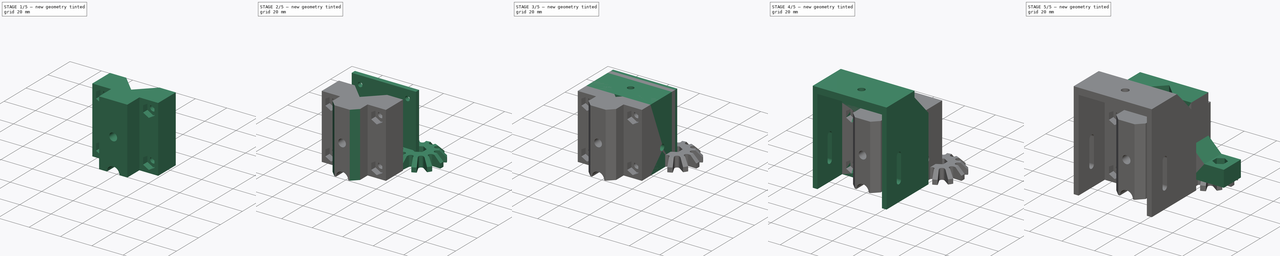
[diagram: build sequence overview — one tinted view per stage of 5, left to right]
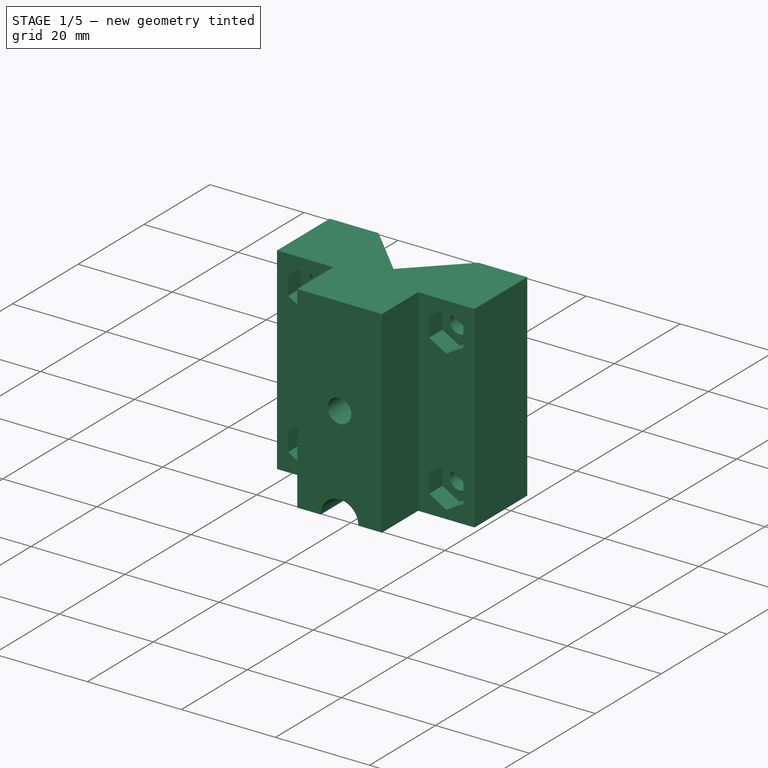
[diagram: stage 1 of 5 — iso view after this stage's code; geometry added in this stage tinted green]
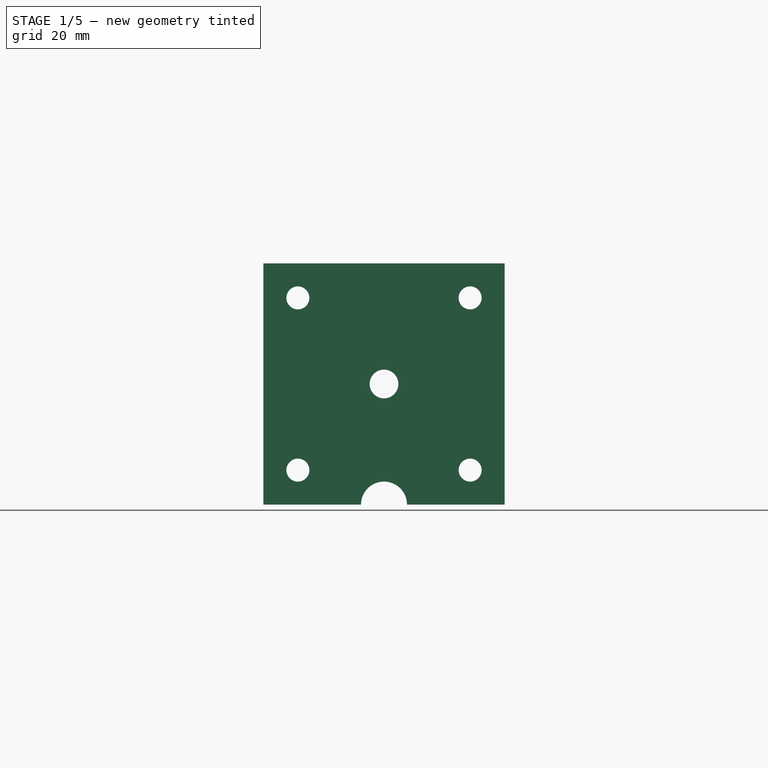
[diagram: stage 1 of 5 — front view after this stage's code; geometry added in this stage tinted green]
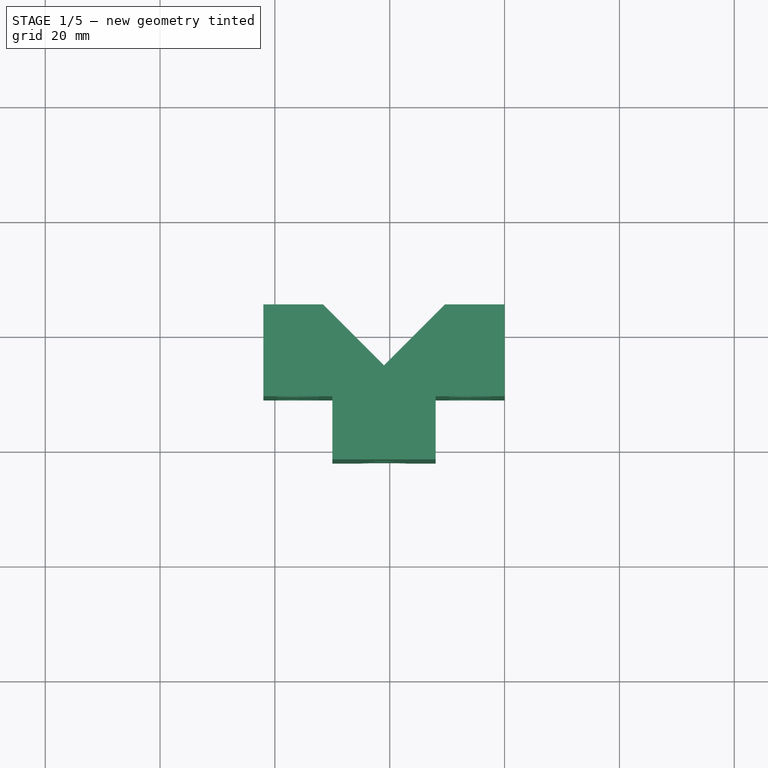
[diagram: stage 1 of 5 — top view after this stage's code; geometry added in this stage tinted green]
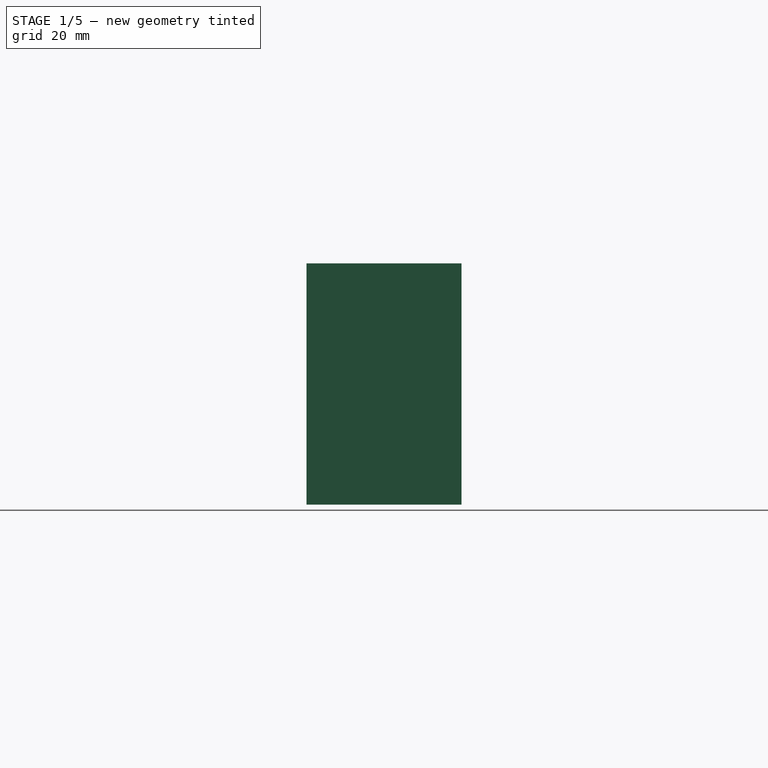
[diagram: stage 1 of 5 — right view after this stage's code; geometry added in this stage tinted green]
FCSTD DOCUMENT  (FreeCAD 0.18R16146 (Git))
Label: all
License: All rights reserved
LicenseURL: http://en.wikipedia.org/wiki/All_rights_reserved
objects: Sketcher::SketchObject×31, PartDesign::Pocket×18, PartDesign::Pad×13, PartDesign::Body×6, PartDesign::Chamfer×4, PartDesign::PolarPattern×1
note: 104 computed .brp shape members not serialized (recipe doc carries the construction recipe); baked Part::Feature solids carry a one-line shape summary decoded from their .brp

FEATURE [Sketcher::SketchObject] Sketch108
  MapMode = 5
  Support = -> [XY_Plane013]
  sketch-geometry (7):
    g0: LineSegment StartX=-10.3934 StartY=-15 StartZ=0 EndX=-21 EndY=-25.6066 EndZ=0
    g1: LineSegment StartX=-21 StartY=-25.6066 StartZ=0 EndX=-31.6066 EndY=-15 EndZ=0
    g2: LineSegment StartX=-31.6066 StartY=-15 StartZ=0 EndX=-42 EndY=-15 EndZ=0
    g3: LineSegment StartX=-42 StartY=-15 StartZ=0 EndX=-42 EndY=-35 EndZ=0
    g4: LineSegment StartX=-42 StartY=-35 StartZ=0 EndX=0 EndY=-35 EndZ=0
    g5: LineSegment StartX=0 StartY=-35 StartZ=0 EndX=0 EndY=-15 EndZ=0
    g6: LineSegment StartX=0 StartY=-15 StartZ=0 EndX=-10.3934 EndY=-15 EndZ=0
  constraints (21):
    c: Coincident(g0,g1)
    c: Coincident(g1,g2)
    c: Coincident(g2,g3)
    c: Coincident(g3,g4)
    c: Coincident(g4,g5)
    c: Coincident(g5,g6)
    c: Coincident(g0,g6)
    c: Horizontal(g6)
    c: Horizontal(g2)
    c: Horizontal(g4)
    c: Vertical(g3)
    c: Vertical(g5)
    c: Perpendicular(g1,g0)
    c: Equal(g0,g1)
    c: Equal(g2,g6)
    c: Equal(g5,g3)
    c: DistanceY(g5,g5) = 20
    c: Distance(g0) = 15
    c: DistanceX(g4,g4) = 42
    c: PointOnObject(g5,g-2)
    c: DistanceY(g5,g-1) = 15
FEATURE [PartDesign::Pad] Pad044
  Length = 42
  Length2 = 100
  Profile = -> Sketch108
  Type = 0
FEATURE [Sketcher::SketchObject] Sketch110
  ExternalGeometry = -> [Pad044]
  MapMode = 5
  Placement = pos=(0,0,42) rot=(0,0,1;0rad)
  Support = -> [Pad044]
  sketch-geometry (2):
    g0: LineSegment StartX=-21 StartY=-25.6066 StartZ=0 EndX=-21 EndY=-45.6066 EndZ=0
    g1: LineSegment StartX=-21 StartY=-45.6066 StartZ=0 EndX=-21 EndY=-60.6066 EndZ=0
  constraints (6):
    c: DistanceY(g0,g0) = 20
    c: Coincident(g0,g-3)
    c: Vertical(g0)
    c: Vertical(g1)
    c: Coincident(g0,g1)
    c: DistanceY(g1,g1) = 15
FEATURE [Sketcher::SketchObject] Sketch111
  MapMode = 5
  Placement = pos=(0,-35,0) rot=(1,0,0;1.5708rad)
  Support = -> [Pad044]
  sketch-geometry (8):
    g0: LineSegment [constr] StartX=-36 StartY=36 StartZ=0 EndX=-6 EndY=36 EndZ=0
    g1: LineSegment [constr] StartX=-6 StartY=36 StartZ=0 EndX=-6 EndY=6 EndZ=0
    g2: LineSegment [constr] StartX=-6 StartY=6 StartZ=0 EndX=-36 EndY=6 EndZ=0
    g3: LineSegment [constr] StartX=-36 StartY=6 StartZ=0 EndX=-36 EndY=36 EndZ=0
    g4: Circle CenterX=-36 CenterY=36 CenterZ=0 NormalX=0 NormalY=0 NormalZ=1 AngleXU=0 Radius=2
    g5: Circle CenterX=-6 CenterY=36 CenterZ=0 NormalX=0 NormalY=0 NormalZ=1 AngleXU=0 Radius=2
    g6: Circle CenterX=-36 CenterY=6 CenterZ=0 NormalX=0 NormalY=0 NormalZ=1 AngleXU=0 Radius=2
    g7: Circle CenterX=-6 CenterY=6 CenterZ=0 NormalX=0 NormalY=0 NormalZ=1 AngleXU=0 Radius=2
  constraints (20):
    c: Coincident(g0,g1)
    c: Coincident(g1,g2)
    c: Coincident(g2,g3)
    c: Coincident(g3,g0)
    c: Horizontal(g0)
    c: Horizontal(g2)
    c: Vertical(g1)
    c: Vertical(g3)
    c: Equal(g0,g3)
    c: DistanceX(g0,g0) = 30
    c: Coincident(g1,g7)
    c: Coincident(g2,g6)
    c: Coincident(g0,g4)
    c: Coincident(g0,g5)
    c: Radius(g6) = 2
    c: Equal(g6,g7)
    c: Equal(g6,g5)
    c: Equal(g6,g4)
    c: DistanceX(g7,g-1) = 6
    c: DistanceY(g-1,g7) = 6
FEATURE [PartDesign::Pocket] Pocket060
  BaseFeature = -> Pad044
  Length = 25
  Length2 = 100
  Profile = -> Sketch111
  Type = 0
FEATURE [Sketcher::SketchObject] Sketch109
  ExternalGeometry = -> [Pocket060]
  MapMode = 5
  Placement = pos=(0,-35,0) rot=(1,0,0;1.5708rad)
  Support = -> [Pocket060]
  sketch-geometry (28):
    g0: LineSegment StartX=-36 StartY=31.8 StartZ=0 EndX=-32.3627 EndY=33.9 EndZ=0
    g1: LineSegment StartX=-32.3627 StartY=33.9 StartZ=0 EndX=-32.3627 EndY=38.1 EndZ=0
    g2: LineSegment StartX=-32.3627 StartY=38.1 StartZ=0 EndX=-36 EndY=40.2 EndZ=0
    g3: LineSegment StartX=-36 StartY=40.2 StartZ=0 EndX=-39.6373 EndY=38.1 EndZ=0
    g4: LineSegment StartX=-39.6373 StartY=38.1 StartZ=0 EndX=-39.6373 EndY=33.9 EndZ=0
    g5: LineSegment StartX=-39.6373 StartY=33.9 StartZ=0 EndX=-36 EndY=31.8 EndZ=0
    g6: Circle [constr] CenterX=-36 CenterY=36 CenterZ=0 NormalX=0 NormalY=0 NormalZ=1 AngleXU=0 Radius=4.2
    g7: LineSegment StartX=-9.63731 StartY=33.9 StartZ=0 EndX=-6 EndY=31.8 EndZ=0
    g8: LineSegment StartX=-6 StartY=31.8 StartZ=0 EndX=-2.36269 EndY=33.9 EndZ=0
    g9: LineSegment StartX=-2.36269 StartY=33.9 StartZ=0 EndX=-2.36269 EndY=38.1 EndZ=0
    g10: LineSegment StartX=-2.36269 StartY=38.1 StartZ=0 EndX=-6 EndY=40.2 EndZ=0
    g11: LineSegment StartX=-6 StartY=40.2 StartZ=0 EndX=-9.63731 EndY=38.1 EndZ=0
    g12: LineSegment StartX=-9.63731 StartY=38.1 StartZ=0 EndX=-9.63731 EndY=33.9 EndZ=0
    g13: Circle [constr] CenterX=-6 CenterY=36 CenterZ=0 NormalX=0 NormalY=0 NormalZ=1 AngleXU=0 Radius=4.2
    g14: LineSegment StartX=-39.6373 StartY=3.9 StartZ=0 EndX=-36 EndY=1.8 EndZ=0
    g15: LineSegment StartX=-36 StartY=1.8 StartZ=0 EndX=-32.3627 EndY=3.9 EndZ=0
    g16: LineSegment StartX=-32.3627 StartY=3.9 StartZ=0 EndX=-32.3627 EndY=8.1 EndZ=0
    g17: LineSegment StartX=-32.3627 StartY=8.1 StartZ=0 EndX=-36 EndY=10.2 EndZ=0
    g18: LineSegment StartX=-36 StartY=10.2 StartZ=0 EndX=-39.6373 EndY=8.1 EndZ=0
    g19: LineSegment StartX=-39.6373 StartY=8.1 StartZ=0 EndX=-39.6373 EndY=3.9 EndZ=0
    g20: Circle [constr] CenterX=-36 CenterY=6 CenterZ=0 NormalX=0 NormalY=0 NormalZ=1 AngleXU=0 Radius=4.2
    g21: LineSegment StartX=-6 StartY=1.8 StartZ=0 EndX=-2.36269 EndY=3.9 EndZ=0
    g22: LineSegment StartX=-2.36269 StartY=3.9 StartZ=0 EndX=-2.36269 EndY=8.1 EndZ=0
    g23: LineSegment StartX=-2.36269 StartY=8.1 StartZ=0 EndX=-6 EndY=10.2 EndZ=0
    g24: LineSegment StartX=-6 StartY=10.2 StartZ=0 EndX=-9.63731 EndY=8.1 EndZ=0
    g25: LineSegment StartX=-9.63731 StartY=8.1 StartZ=0 EndX=-9.63731 EndY=3.9 EndZ=0
    g26: LineSegment StartX=-9.63731 StartY=3.9 StartZ=0 EndX=-6 EndY=1.8 EndZ=0
    g27: Circle [constr] CenterX=-6 CenterY=6 CenterZ=0 NormalX=0 NormalY=0 NormalZ=1 AngleXU=0 Radius=4.2
  constraints (64):
    c: Coincident(g0,g1)
    c: Coincident(g1,g2)
    c: Coincident(g2,g3)
    c: Coincident(g3,g4)
    c: Coincident(g4,g5)
    c: Coincident(g5,g0)
    c: Equal(g0, g1-g5) x5
    c: PointOnObject(g0,g6)
    c: PointOnObject(g1,g6)
    c: PointOnObject(g2,g6)
    c: PointOnObject(g3,g6)
    c: PointOnObject(g4,g6)
    c: PointOnObject(g5,g6)
    c: Coincident(g7,g8)
    c: Coincident(g8,g9)
    c: Coincident(g9,g10)
    c: Coincident(g10,g11)
    c: Coincident(g11,g12)
    c: Coincident(g12,g7)
    c: Equal(g7, g8-g12) x5
    c: PointOnObject(g7,g13)
    c: PointOnObject(g8,g13)
    c: PointOnObject(g9,g13)
    c: PointOnObject(g10,g13)
    c: PointOnObject(g11,g13)
    c: PointOnObject(g12,g13)
    c: Coincident(g14,g15)
    c: Coincident(g15,g16)
    c: Coincident(g16,g17)
    c: Coincident(g17,g18)
    c: Coincident(g18,g19)
    c: Coincident(g19,g14)
    c: Equal(g14, g15-g19) x5
    c: PointOnObject(g14,g20)
    c: PointOnObject(g15,g20)
    c: PointOnObject(g16,g20)
    c: PointOnObject(g17,g20)
    c: PointOnObject(g18,g20)
    c: PointOnObject(g19,g20)
    c: Coincident(g21,g22)
    c: Coincident(g22,g23)
    c: Coincident(g23,g24)
    c: Coincident(g24,g25)
    c: Coincident(g25,g26)
    c: Coincident(g26,g21)
    c: Equal(g21, g22-g26) x5
    c: PointOnObject(g21,g27)
    c: PointOnObject(g22,g27)
    c: PointOnObject(g23,g27)
    c: PointOnObject(g24,g27)
    c: PointOnObject(g25,g27)
    c: PointOnObject(g26,g27)
    c: Coincident(g27,g-6)
    c: Coincident(g20,g-5)
    c: Coincident(g6,g-3)
    c: Coincident(g13,g-4)
    c: Vertical(g4)
    c: Vertical(g12)
    c: Vertical(g19)
    c: Vertical(g25)
    c: Radius(g20) = 4.2
    c: Equal(g20,g6)
    c: Equal(g20,g13)
    c: Equal(g20,g27)
FEATURE [PartDesign::Pocket] Pocket059
  BaseFeature = -> Pocket060
  Length = 8
  Length2 = 100
  Profile = -> Sketch109
  Type = 0
FEATURE [Sketcher::SketchObject] Sketch116
  MapMode = 5
  Placement = pos=(0,0,0) rot=(1,0,0;1.5708rad)
  Support = -> [XZ_Plane013]
  sketch-geometry (7):
    g0: LineSegment StartX=-17.1029 StartY=18.75 StartZ=0 EndX=-17.1029 EndY=23.25 EndZ=0
    g1: LineSegment StartX=-17.1029 StartY=23.25 StartZ=0 EndX=-21 EndY=25.5 EndZ=0
    g2: LineSegment StartX=-21 StartY=25.5 StartZ=0 EndX=-24.8971 EndY=23.25 EndZ=0
    g3: LineSegment StartX=-24.8971 StartY=23.25 StartZ=0 EndX=-24.8971 EndY=18.75 EndZ=0
    g4: LineSegment StartX=-24.8971 StartY=18.75 StartZ=0 EndX=-21 EndY=16.5 EndZ=0
    g5: LineSegment StartX=-21 StartY=16.5 StartZ=0 EndX=-17.1029 EndY=18.75 EndZ=0
    g6: Circle [constr] CenterX=-21 CenterY=21 CenterZ=0 NormalX=0 NormalY=0 NormalZ=1 AngleXU=0 Radius=4.5
  constraints (17):
    c: Coincident(g0,g1)
    c: Coincident(g1,g2)
    c: Coincident(g2,g3)
    c: Coincident(g3,g4)
    c: Coincident(g4,g5)
    c: Coincident(g5,g0)
    c: Equal(g0, g1-g5) x5
    c: PointOnObject(g0,g6)
    c: PointOnObject(g1,g6)
    c: PointOnObject(g2,g6)
    c: PointOnObject(g3,g6)
    c: PointOnObject(g4,g6)
    c: PointOnObject(g5,g6)
    c: Vertical(g3)
    c: Radius(g6) = 4.5
    c: DistanceX(g6,g-1) = 21
    c: DistanceY(g-1,g6) = 21
FEATURE [Sketcher::SketchObject] Sketch115
  MapMode = 5
  Placement = pos=(0,-39,7e-15) rot=(1,0,0;1.5708rad)
  sketch-geometry (3):
    g0: Circle CenterX=-21 CenterY=21 CenterZ=0 NormalX=0 NormalY=0 NormalZ=1 AngleXU=0 Radius=2.5
    g1: Circle CenterX=-21 CenterY=0 CenterZ=0 NormalX=0 NormalY=0 NormalZ=1 AngleXU=0 Radius=4
    g2: LineSegment [constr] StartX=-21 StartY=0 StartZ=0 EndX=-21 EndY=21 EndZ=0
  constraints (8):
    c: PointOnObject(g1,g-1)
    c: Vertical(g2)
    c: Coincident(g0,g2)
    c: Coincident(g1,g2)
    c: DistanceX(g1,g-1) = 21
    c: DistanceY(g2,g2) = 21
    c: Radius(g0) = 2.5
    c: Radius(g1) = 4
FEATURE [PartDesign::Pocket] Pocket063
  BaseFeature = -> Pocket059
  Length = 26
  Length2 = 100
  Profile = -> Sketch115
  Type = 0
FEATURE [PartDesign::Pocket] Pocket064
  BaseFeature = -> Pocket063
  Length = 30
  Length2 = 100
  Profile = -> Sketch116
  Reversed = true
  Type = 0
FEATURE [PartDesign::Body] Body
  Group = -> [Sketch,Pad,Chamfer,Sketch136,Pocket076,Sketch137,Pocket077,PolarPattern]
  Origin = -> Origin
  Tip = -> PolarPattern
FEATURE [Sketcher::SketchObject] Sketch138
  ExternalGeometry = -> [Pocket064]
  MapMode = 5
  Placement = pos=(0,0,0) rot=(1,0,0;3.14159rad)
  Support = -> [Pocket064]
  sketch-geometry (8):
    g0: LineSegment StartX=-42 StartY=35 StartZ=0 EndX=-30 EndY=35 EndZ=0
    g1: LineSegment StartX=-30 StartY=35 StartZ=0 EndX=-30 EndY=31 EndZ=0
    g2: LineSegment StartX=-30 StartY=31 StartZ=0 EndX=-42 EndY=31 EndZ=0
    g3: LineSegment StartX=-42 StartY=31 StartZ=0 EndX=-42 EndY=35 EndZ=0
    g4: LineSegment StartX=0 StartY=35 StartZ=0 EndX=-12 EndY=35 EndZ=0
    g5: LineSegment StartX=-12 StartY=35 StartZ=0 EndX=-12 EndY=31 EndZ=0
    g6: LineSegment StartX=-12 StartY=31 StartZ=0 EndX=0 EndY=31 EndZ=0
    g7: LineSegment StartX=0 StartY=31 StartZ=0 EndX=0 EndY=35 EndZ=0
  constraints (22):
    c: Coincident(g0,g1)
    c: Coincident(g1,g2)
    c: Coincident(g2,g3)
    c: Coincident(g3,g0)
    c: Horizontal(g0)
    c: Horizontal(g2)
    c: Vertical(g1)
    c: Vertical(g3)
    c: Coincident(g4,g5)
    c: Coincident(g5,g6)
    c: Coincident(g6,g7)
    c: Coincident(g7,g4)
    c: Horizontal(g4)
    c: Horizontal(g6)
    c: Vertical(g5)
    c: Vertical(g7)
    c: Equal(g4,g0)
    c: Equal(g1,g5)
    c: Coincident(g4,g-3)
    c: Coincident(g0,g-4)
    c: DistanceX(g4,g4) = 12
    c: DistanceY(g7,g7) = 4
FEATURE [PartDesign::Pocket] Pocket078
  BaseFeature = -> Pocket064
  Length = 43
  Length2 = 100
  Profile = -> Sketch138
  Type = 0
FEATURE [PartDesign::Pad] Pad052
  BaseFeature = -> Pocket078
  Length = 7
  Length2 = 100
  Profile = -> Pocket078 [Face13]
  Type = 0
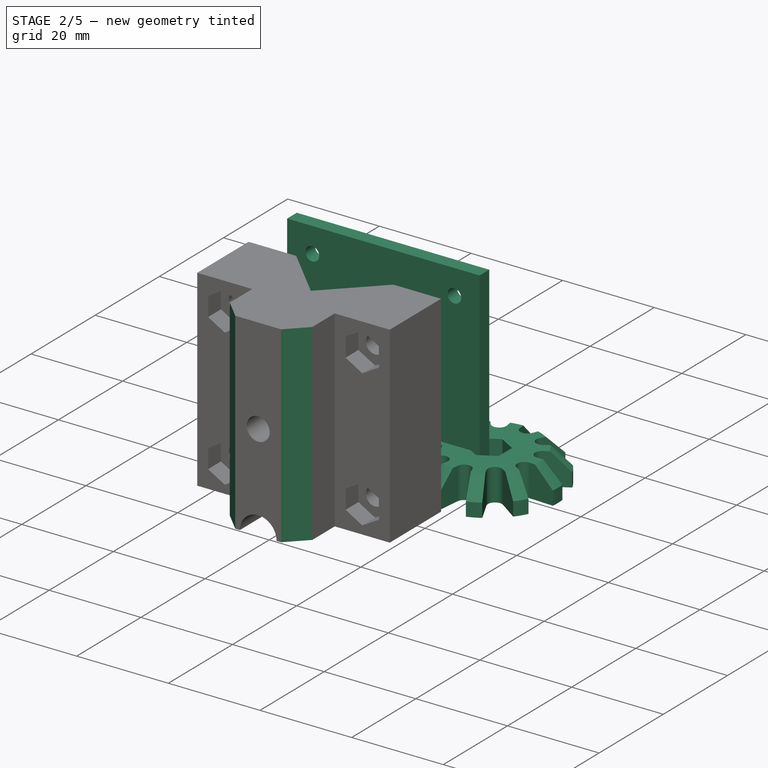
[diagram: stage 2 of 5 — iso view after this stage's code; geometry added in this stage tinted green]
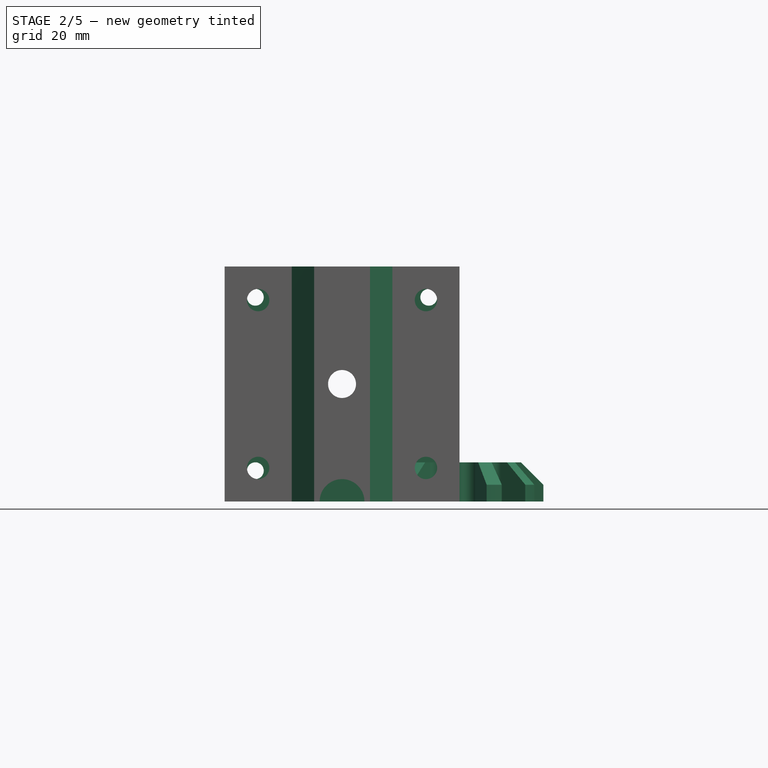
[diagram: stage 2 of 5 — front view after this stage's code; geometry added in this stage tinted green]
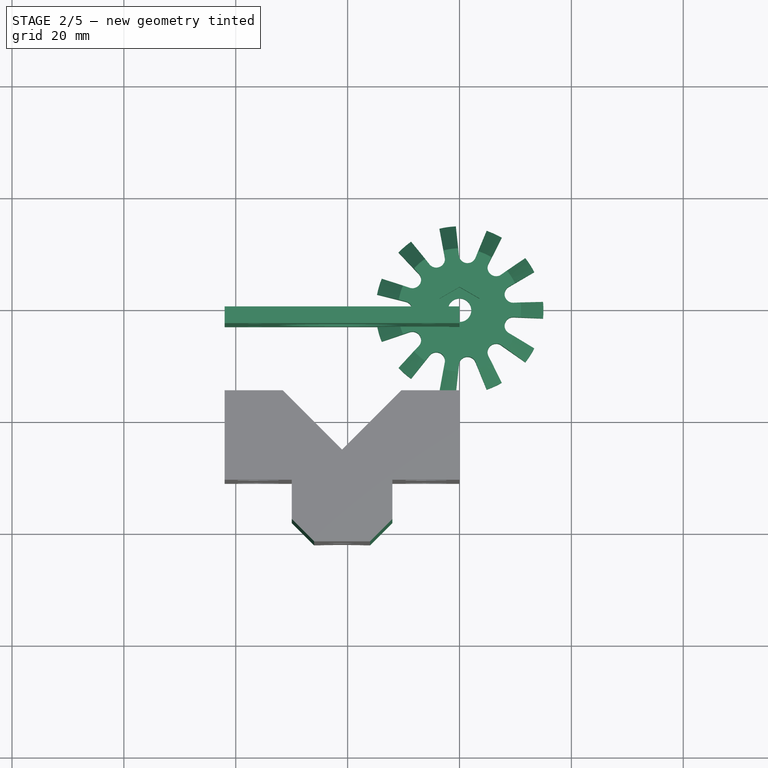
[diagram: stage 2 of 5 — top view after this stage's code; geometry added in this stage tinted green]
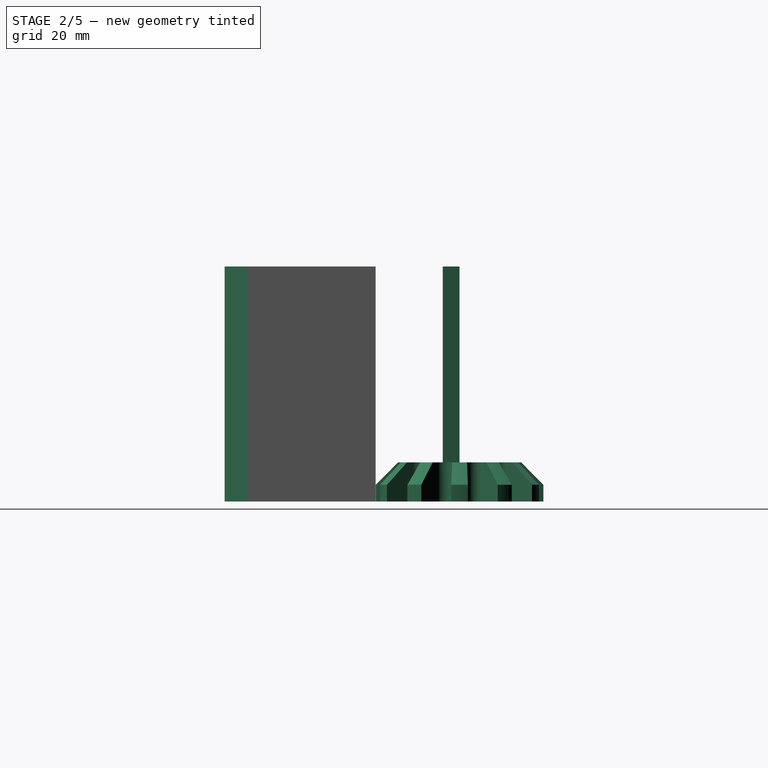
[diagram: stage 2 of 5 — right view after this stage's code; geometry added in this stage tinted green]
FEATURE [PartDesign::Body] Body002  label="top"
  Group = -> [Sketch013,Pad004,Sketch031,Pad014,Sketch032,Pocket016,Sketch033,Pocket017,Chamfer001,Sketch034,Pocket018]
  Origin = -> Origin002
  Placement = pos=(0,0,54) rot=(0,0,1;0rad)
  Tip = -> Pocket018
FEATURE [Sketcher::SketchObject] Sketch070
  MapMode = 5
  Placement = pos=(0,0,0) rot=(1,0,0;1.5708rad)
  Support = -> [XZ_Plane008]
  sketch-geometry (14):
    g0: LineSegment StartX=0 StartY=0 StartZ=0 EndX=-42 EndY=0 EndZ=0
    g1: LineSegment StartX=-42 StartY=0 StartZ=0 EndX=-42 EndY=42 EndZ=0
    g2: LineSegment StartX=-42 StartY=42 StartZ=0 EndX=0 EndY=42 EndZ=0
    g3: LineSegment StartX=0 StartY=42 StartZ=0 EndX=0 EndY=0 EndZ=0
    g4: Circle CenterX=-21 CenterY=21 CenterZ=0 NormalX=0 NormalY=0 NormalZ=1 AngleXU=0 Radius=11.5
    g5: LineSegment [constr] StartX=-5.5 StartY=5.5 StartZ=0 EndX=-5.5 EndY=36.5 EndZ=0
    g6: LineSegment [constr] StartX=-5.5 StartY=36.5 StartZ=0 EndX=-36.5 EndY=36.5 EndZ=0
    g7: LineSegment [constr] StartX=-36.5 StartY=36.5 StartZ=0 EndX=-36.5 EndY=5.5 EndZ=0
    g8: LineSegment [constr] StartX=-36.5 StartY=5.5 StartZ=0 EndX=-5.5 EndY=5.5 EndZ=0
    g9: Circle [constr] CenterX=-21 CenterY=21 CenterZ=0 NormalX=0 NormalY=0 NormalZ=1 AngleXU=0 Radius=21.9203
    g10: Circle CenterX=-36.5 CenterY=36.5 CenterZ=0 NormalX=0 NormalY=0 NormalZ=1 AngleXU=0 Radius=1.5
    g11: Circle CenterX=-5.5 CenterY=36.5 CenterZ=0 NormalX=0 NormalY=0 NormalZ=1 AngleXU=0 Radius=1.5
    g12: Circle CenterX=-5.5 CenterY=5.5 CenterZ=0 NormalX=0 NormalY=0 NormalZ=1 AngleXU=0 Radius=1.5
    g13: Circle CenterX=-36.5 CenterY=5.5 CenterZ=0 NormalX=0 NormalY=0 NormalZ=1 AngleXU=0 Radius=1.5
  constraints (36):
    c: Coincident(g0,g1)
    c: Coincident(g1,g2)
    c: Coincident(g2,g3)
    c: Coincident(g3,g0)
    c: Horizontal(g0)
    c: Horizontal(g2)
    c: Vertical(g1)
    c: Vertical(g3)
    c: Radius(g4) = 11.5
    c: Equal(g3,g2)
    c: DistanceX(g2,g2) = 42
    c: Coincident(g0,g-1)
    c: DistanceX(g4,g0) = 21
    c: DistanceY(g4,g2) = 21
    c: Coincident(g5,g6)
    c: Coincident(g6,g7)
    c: Coincident(g7,g8)
    c: Coincident(g8,g5)
    c: Equal(g5,g6)
    c: Equal(g5,g7)
    c: Equal(g5,g8)
    c: PointOnObject(g5,g9)
    c: PointOnObject(g6,g9)
    c: PointOnObject(g7,g9)
    c: PointOnObject(g8,g9)
    c: Horizontal(g6)
    c: Coincident(g4,g9)
    c: DistanceX(g6,g6) = 31
    c: Coincident(g7,g13)
    c: Coincident(g5,g12)
    c: Coincident(g6,g10)
    c: Coincident(g5,g11)
    c: Radius(g10) = 1.5
    c: Equal(g10,g11)
    c: Equal(g10,g13)
    c: Equal(g10,g12)
FEATURE [PartDesign::Pad] Pad027
  Length = 3
  Length2 = 100
  Placement = pos=(0,0,0) rot=(1,0,0;1.5708rad)
  Profile = -> Sketch070
  Type = 0
FEATURE [PartDesign::Body] Body008  label="nema_bracket"
  Group = -> [Sketch070,Pad027,Sketch071,Pad028,Sketch072,Pocket038,Sketch073,Pocket039,Sketch074,Pocket040,Sketch092,Pocket,Sketch134,Pocket074,Sketch135,Pocket075,Pad051]
  Origin = -> Origin008
  Placement = pos=(-41.9,-54.5,60) rot=(0,0,1;3.14159rad)
  Tip = -> Pad051
FEATURE [Sketcher::SketchObject] Sketch
  MapMode = 5
  Support = -> [XY_Plane]
  sketch-geometry (2):
    g0: Circle CenterX=0 CenterY=0 CenterZ=0 NormalX=0 NormalY=0 NormalZ=1 AngleXU=0 Radius=2.1
    g1: Circle CenterX=0 CenterY=0 CenterZ=0 NormalX=0 NormalY=0 NormalZ=1 AngleXU=0 Radius=15
  constraints (4):
    c: Coincident(g0,g1)
    c: Coincident(g0,g-1)
    c: Radius(g0) = 2.1
    c: Radius(g1) = 15
FEATURE [PartDesign::Pad] Pad
  Length = 7
  Length2 = 100
  Profile = -> Sketch
  Type = 0
FEATURE [PartDesign::Chamfer] Chamfer
  Base = -> Pad [Edge3]
  BaseFeature = -> Pad
  Size = 4
FEATURE [Sketcher::SketchObject] Sketch136
  MapMode = 5
  Placement = pos=(0,0,7) rot=(0,0,1;0rad)
  Support = -> [Chamfer]
  sketch-geometry (7):
    g0: LineSegment StartX=3.5507 StartY=-2.05 StartZ=0 EndX=3.5507 EndY=2.05 EndZ=0
    g1: LineSegment StartX=3.5507 StartY=2.05 StartZ=0 EndX=0 EndY=4.1 EndZ=0
    g2: LineSegment StartX=0 StartY=4.1 StartZ=0 EndX=-3.5507 EndY=2.05 EndZ=0
    g3: LineSegment StartX=-3.5507 StartY=2.05 StartZ=0 EndX=-3.5507 EndY=-2.05 EndZ=0
    g4: LineSegment StartX=-3.5507 StartY=-2.05 StartZ=0 EndX=4e-16 EndY=-4.1 EndZ=0
    g5: LineSegment StartX=4e-16 StartY=-4.1 StartZ=0 EndX=3.5507 EndY=-2.05 EndZ=0
    g6: Circle [constr] CenterX=0 CenterY=0 CenterZ=0 NormalX=0 NormalY=0 NormalZ=1 AngleXU=0 Radius=4.1
  constraints (16):
    c: Coincident(g0,g1)
    c: Coincident(g1,g2)
    c: Coincident(g2,g3)
    c: Coincident(g3,g4)
    c: Coincident(g4,g5)
    c: Coincident(g5,g0)
    c: Equal(g0, g1-g5) x5
    c: PointOnObject(g0,g6)
    c: PointOnObject(g1,g6)
    c: PointOnObject(g2,g6)
    c: PointOnObject(g3,g6)
    c: PointOnObject(g4,g6)
    c: PointOnObject(g5,g6)
    c: Coincident(g6,g-1)
    c: Vertical(g3)
    c: Radius(g6) = 4.1
FEATURE [PartDesign::Pocket] Pocket076
  BaseFeature = -> Chamfer
  Length = 4
  Length2 = 100
  Profile = -> Sketch136
  Type = 0
FEATURE [Sketcher::SketchObject] Sketch137
  MapMode = 5
  Placement = pos=(0,0,7) rot=(0,0,1;0rad)
  Support = -> [Pocket076]
  sketch-geometry (4):
    g0: ArcOfCircle CenterX=-10 CenterY=0 CenterZ=0 NormalX=0 NormalY=0 NormalZ=1 AngleXU=0 Radius=1.54616 StartAngle=4.95737 EndAngle=7.609
    g1: LineSegment StartX=-9.625 StartY=1.5 StartZ=0 EndX=-19.625 EndY=4 EndZ=0
    g2: LineSegment StartX=-9.625 StartY=-1.5 StartZ=0 EndX=-19.625 EndY=-4 EndZ=0
    g3: LineSegment StartX=-19.625 StartY=4 StartZ=0 EndX=-19.625 EndY=-4 EndZ=0
  constraints (10):
    c: Tangent(g0,g2) = 1.5708
    c: Tangent(g0,g1) = -1.5708
    c: DistanceX(g1,g1) = 10
    c: PointOnObject(g0,g-1)
    c: DistanceY(g0,g0) = 3
    c: Coincident(g2,g3)
    c: Coincident(g1,g3)
    c: Symmetric(g2,g1,g-1)
    c: DistanceY(g3,g3) = 8
    c: DistanceX(g0,g-1) = 10
FEATURE [PartDesign::Pocket] Pocket077
  BaseFeature = -> Pocket076
  Length = 9
  Length2 = 100
  Profile = -> Sketch137
  Type = 0
FEATURE [PartDesign::PolarPattern] PolarPattern
  Angle = 360
  Axis = -> Z_Axis
  BaseFeature = -> Pocket077
  Occurrences = 11
  Originals = -> [Pocket077]
FEATURE [PartDesign::Chamfer] Chamfer008
  Base = -> Pad052 [Edge124,Edge126]
  BaseFeature = -> Pad052
  Size = 4
FEATURE [PartDesign::Body] Body013  label="bottom"
  Group = -> [Sketch108,Pad044,Sketch110,Sketch111,Pocket060,Sketch109,Pocket059,Sketch115,Pocket063,Sketch116,Pocket064,Sketch138,Pocket078,Pad052,Chamfer008]
  Origin = -> Origin013
  Placement = pos=(0,0,6) rot=(0,0,1;0rad)
  Tip = -> Chamfer008
FEATURE [Sketcher::SketchObject] Sketch139
  MapMode = 5
  Support = -> [XY_Plane014]
  sketch-geometry (6):
    g0: LineSegment StartX=110 StartY=-110 StartZ=0 EndX=110 EndY=110 EndZ=0
    g1: LineSegment StartX=110 StartY=110 StartZ=0 EndX=-110 EndY=110 EndZ=0
    g2: LineSegment StartX=-110 StartY=110 StartZ=0 EndX=-110 EndY=-110 EndZ=0
    g3: LineSegment StartX=-110 StartY=-110 StartZ=0 EndX=110 EndY=-110 EndZ=0
    g4: Circle [constr] CenterX=0 CenterY=0 CenterZ=0 NormalX=0 NormalY=0 NormalZ=1 AngleXU=0 Radius=155.563
    g5: Circle CenterX=0 CenterY=0 CenterZ=0 NormalX=0 NormalY=0 NormalZ=1 AngleXU=0 Radius=197.325
  constraints (15):
    c: Coincident(g0,g1)
    c: Coincident(g1,g2)
    c: Coincident(g2,g3)
    c: Coincident(g3,g0)
    c: Equal(g0,g1)
    c: Equal(g0,g2)
    c: Equal(g0,g3)
    c: PointOnObject(g0,g4)
    c: PointOnObject(g1,g4)
    c: PointOnObject(g2,g4)
    c: PointOnObject(g3,g4)
    c: Horizontal(g3)
    c: Coincident(g4,g-1)
    c: DistanceX(g3,g3) = 220
    c: Coincident(g4,g5)
FEATURE [PartDesign::Body] Body014
  Group = -> [Sketch139]
  Origin = -> Origin014
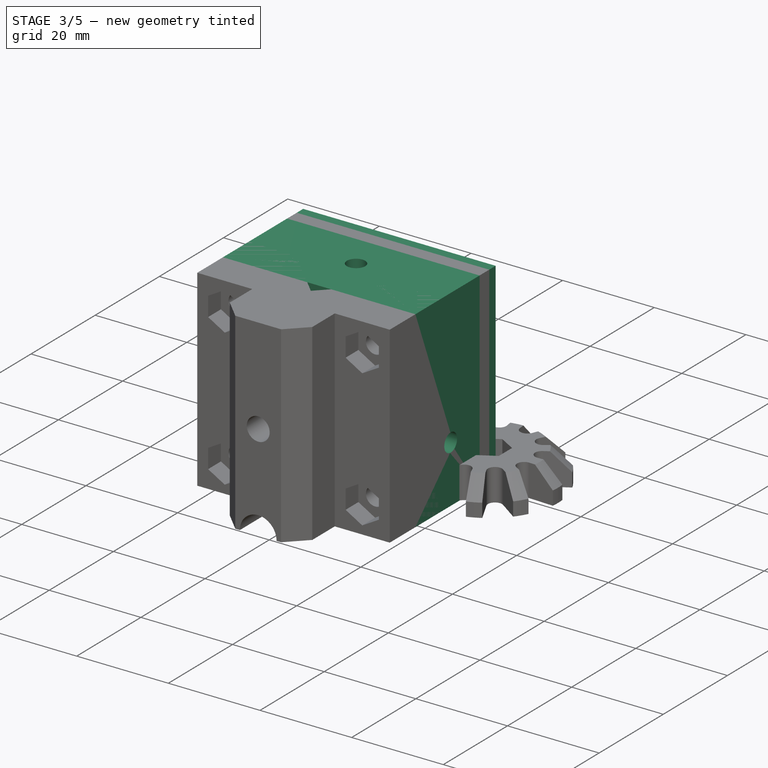
[diagram: stage 3 of 5 — iso view after this stage's code; geometry added in this stage tinted green]
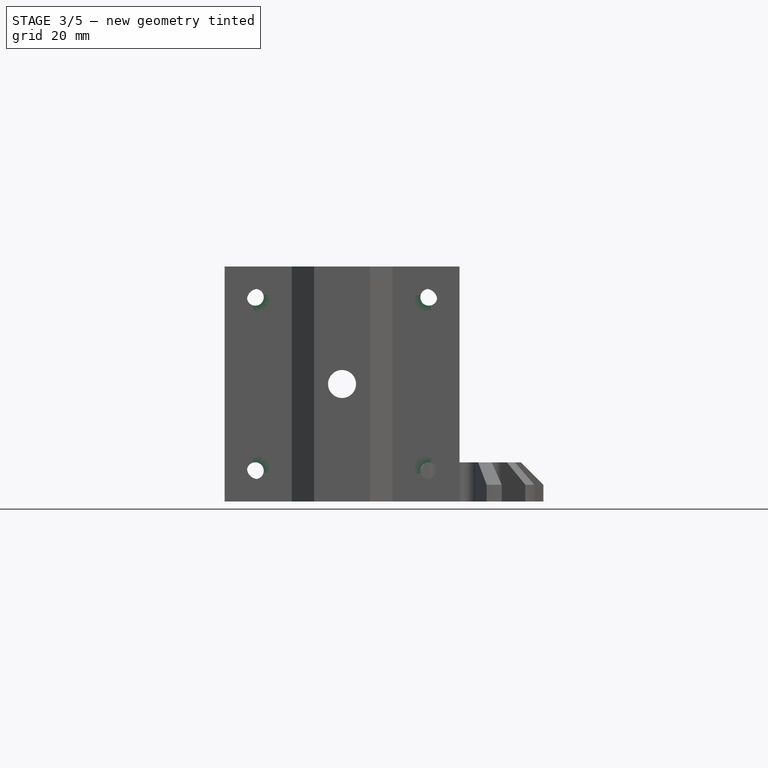
[diagram: stage 3 of 5 — front view after this stage's code; geometry added in this stage tinted green]
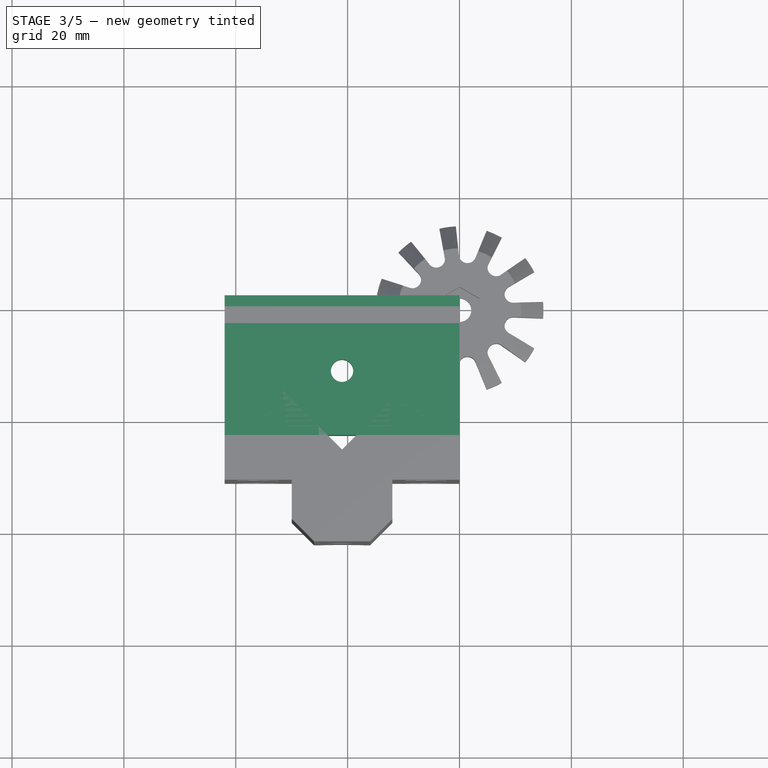
[diagram: stage 3 of 5 — top view after this stage's code; geometry added in this stage tinted green]
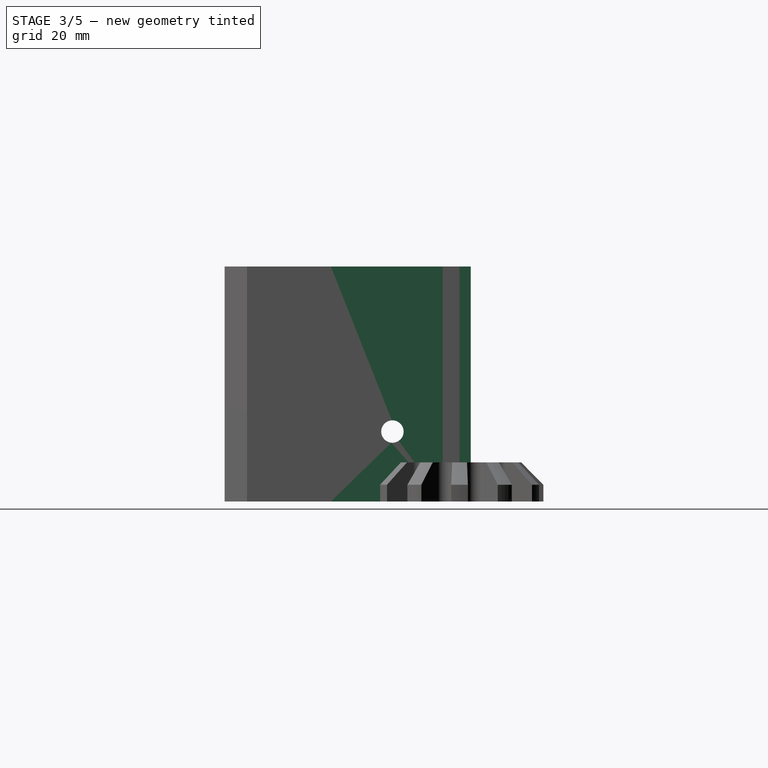
[diagram: stage 3 of 5 — right view after this stage's code; geometry added in this stage tinted green]
FEATURE [Sketcher::SketchObject] Sketch071
  ExternalGeometry = -> [Pad027]
  MapMode = 5
  Placement = pos=(0,-3,-7e-16) rot=(1,0,0;1.5708rad)
  Support = -> [Pad027]
  sketch-geometry (12):
    g0: LineSegment StartX=-9.5 StartY=21 StartZ=0 EndX=-9.5 EndY=0 EndZ=0
    g1: LineSegment StartX=-9.5 StartY=0 StartZ=0 EndX=0 EndY=0 EndZ=0
    g2: LineSegment StartX=0 StartY=0 StartZ=0 EndX=0 EndY=42 EndZ=0
    g3: LineSegment StartX=0 StartY=42 StartZ=0 EndX=-42 EndY=42 EndZ=0
    g4: LineSegment StartX=-42 StartY=42 StartZ=0 EndX=-42 EndY=0 EndZ=0
    g5: LineSegment StartX=-42 StartY=0 StartZ=0 EndX=-32.5 EndY=0 EndZ=0
    g6: LineSegment StartX=-32.5 StartY=0 StartZ=0 EndX=-32.5 EndY=21 EndZ=0
    g7: ArcOfCircle CenterX=-21 CenterY=21 CenterZ=0 NormalX=0 NormalY=0 NormalZ=1 AngleXU=0 Radius=11.5 StartAngle=0 EndAngle=3.14159
    g8: Circle CenterX=-36.5 CenterY=36.5 CenterZ=0 NormalX=0 NormalY=0 NormalZ=1 AngleXU=0 Radius=1.5
    g9: Circle CenterX=-5.5 CenterY=36.5 CenterZ=0 NormalX=0 NormalY=0 NormalZ=1 AngleXU=0 Radius=1.5
    g10: Circle CenterX=-5.5 CenterY=5.5 CenterZ=0 NormalX=0 NormalY=0 NormalZ=1 AngleXU=0 Radius=1.5
    g11: Circle CenterX=-36.5 CenterY=5.5 CenterZ=0 NormalX=0 NormalY=0 NormalZ=1 AngleXU=0 Radius=1.5
  constraints (28):
    c: Coincident(g0,g1)
    c: Coincident(g1,g2)
    c: Coincident(g2,g3)
    c: Coincident(g3,g4)
    c: Coincident(g4,g5)
    c: Coincident(g5,g6)
    c: Coincident(g11,g-5)
    c: Coincident(g8,g-4)
    c: Coincident(g7,g-7)
    c: Coincident(g6,g7)
    c: Coincident(g0,g7)
    c: Coincident(g9,g-3)
    c: Coincident(g10,g-6)
    c: Coincident(g1,g-1)
    c: Coincident(g4,g-9)
    c: Coincident(g3,g-9)
    c: Coincident(g2,g-8)
    c: Horizontal(g1)
    c: Horizontal(g5)
    c: Vertical(g6)
    c: Vertical(g0)
    c: Radius(g7) = 11.5
    c: Equal(g0,g6)
    c: DistanceY(g0,g0) = 21
    c: Radius(g11) = 1.5
    c: Equal(g11,g8)
    c: Equal(g11,g9)
    c: Equal(g11,g10)
FEATURE [PartDesign::Pad] Pad028
  BaseFeature = -> Pad027
  Length = 20
  Length2 = 100
  Placement = pos=(0,0,0) rot=(1,0,0;1.5708rad)
  Profile = -> Sketch071
  Type = 0
FEATURE [Sketcher::SketchObject] Sketch072
  ExternalGeometry = -> [Pad028]
  MapMode = 5
  Placement = pos=(0,-23,-5.1e-15) rot=(1,0,0;1.5708rad)
  Support = -> [Pad028]
  sketch-geometry (4):
    g0: Circle CenterX=-5.5 CenterY=36.5 CenterZ=0 NormalX=0 NormalY=0 NormalZ=1 AngleXU=0 Radius=3.1
    g1: Circle CenterX=-5.5 CenterY=5.5 CenterZ=0 NormalX=0 NormalY=0 NormalZ=1 AngleXU=0 Radius=3.1
    g2: Circle CenterX=-36.5 CenterY=5.5 CenterZ=0 NormalX=0 NormalY=0 NormalZ=1 AngleXU=0 Radius=3.1
    g3: Circle CenterX=-36.5 CenterY=36.5 CenterZ=0 NormalX=0 NormalY=0 NormalZ=1 AngleXU=0 Radius=3.1
  constraints (8):
    c: Coincident(g3,g-7)
    c: Coincident(g2,g-9)
    c: Coincident(g1,g-10)
    c: Coincident(g0,g-8)
    c: Radius(g0) = 3.1
    c: Equal(g0,g3)
    c: Equal(g0,g2)
    c: Equal(g0,g1)
FEATURE [PartDesign::Pocket] Pocket038
  BaseFeature = -> Pad028
  Length = 8
  Length2 = 100
  Placement = pos=(0,0,0) rot=(1,0,0;1.5708rad)
  Profile = -> Sketch072
  Type = 0
FEATURE [Sketcher::SketchObject] Sketch073
  MapMode = 5
  Placement = pos=(0,0,42) rot=(0,0,1;3.14159rad)
  Support = -> [Pocket038]
  sketch-geometry (1):
    g0: Circle CenterX=21 CenterY=11.5 CenterZ=0 NormalX=0 NormalY=0 NormalZ=1 AngleXU=0 Radius=2
  constraints (3):
    c: DistanceX(g-1,g0) = 21
    c: DistanceY(g-1,g0) = 11.5
    c: Radius(g0) = 2
FEATURE [PartDesign::Pocket] Pocket039
  BaseFeature = -> Pocket038
  Length = 12
  Length2 = 100
  Placement = pos=(0,0,0) rot=(1,0,0;1.5708rad)
  Profile = -> Sketch073
  Type = 0
FEATURE [Sketcher::SketchObject] Sketch074
  MapMode = 5
  Support = -> [XY_Plane008]
  sketch-geometry (7):
    g0: LineSegment StartX=-17.5359 StartY=-13.5 StartZ=0 EndX=-17.5359 EndY=-9.5 EndZ=0
    g1: LineSegment StartX=-17.5359 StartY=-9.5 StartZ=0 EndX=-21 EndY=-7.5 EndZ=0
    g2: LineSegment StartX=-21 StartY=-7.5 StartZ=0 EndX=-24.4641 EndY=-9.5 EndZ=0
    g3: LineSegment StartX=-24.4641 StartY=-9.5 StartZ=0 EndX=-24.4641 EndY=-13.5 EndZ=0
    g4: LineSegment StartX=-24.4641 StartY=-13.5 StartZ=0 EndX=-21 EndY=-15.5 EndZ=0
    g5: LineSegment StartX=-21 StartY=-15.5 StartZ=0 EndX=-17.5359 EndY=-13.5 EndZ=0
    g6: Circle [constr] CenterX=-21 CenterY=-11.5 CenterZ=0 NormalX=0 NormalY=0 NormalZ=1 AngleXU=0 Radius=4
  constraints (17):
    c: Coincident(g0,g1)
    c: Coincident(g1,g2)
    c: Coincident(g2,g3)
    c: Coincident(g3,g4)
    c: Coincident(g4,g5)
    c: Coincident(g5,g0)
    c: Equal(g0, g1-g5) x5
    c: PointOnObject(g0,g6)
    c: PointOnObject(g1,g6)
    c: PointOnObject(g2,g6)
    c: PointOnObject(g3,g6)
    c: PointOnObject(g4,g6)
    c: PointOnObject(g5,g6)
    c: Vertical(g3)
    c: Radius(g6) = 4
    c: DistanceY(g6,g-1) = 11.5
    c: DistanceX(g6,g-1) = 21
FEATURE [PartDesign::Pocket] Pocket040
  BaseFeature = -> Pocket039
  Length = 36
  Length2 = 100
  Placement = pos=(0,0,0) rot=(1,0,0;1.5708rad)
  Profile = -> Sketch074
  Reversed = true
  Type = 0
FEATURE [Sketcher::SketchObject] Sketch092
  MapMode = 5
  Placement = pos=(0,0,0) rot=(0.707107,0,0.707107;3.14159rad)
  Support = -> [Pocket040]
  sketch-geometry (1):
    g0: Circle CenterX=12.5 CenterY=12 CenterZ=0 NormalX=0 NormalY=0 NormalZ=1 AngleXU=0 Radius=2
  constraints (3):
    c: Radius(g0) = 2
    c: DistanceY(g-1,g0) = 12
    c: DistanceX(g-1,g0) = 12.5
FEATURE [PartDesign::Pocket] Pocket
  BaseFeature = -> Pocket040
  Length = 50
  Length2 = 100
  Placement = pos=(0,0,0) rot=(1,0,0;1.5708rad)
  Profile = -> Sketch092
  Type = 0
FEATURE [PartDesign::Body] Body012  label="top_01"
  Group = -> [Sketch100,Pad040,Sketch101,Pocket056,Sketch102,Pocket057,Sketch103,Pad041,Sketch104,Pad042,Sketch105,Pad043,Sketch133,Pad050,Chamfer007]
  Origin = -> Origin012
  Placement = pos=(0,0,60) rot=(0,0,1;0rad)
  Tip = -> Chamfer007
FEATURE [Sketcher::SketchObject] Sketch134
  ExternalGeometry = -> [Pocket]
  MapMode = 5
  Placement = pos=(-9.5,0,0) rot=(0.707107,0,-0.707107;3.14159rad)
  Support = -> [Pocket]
  sketch-geometry (7):
    g0: LineSegment StartX=-8.9493 StartY=9.95 StartZ=0 EndX=-8.9493 EndY=14.05 EndZ=0
    g1: LineSegment StartX=-8.9493 StartY=14.05 StartZ=0 EndX=-12.5 EndY=16.1 EndZ=0
    g2: LineSegment StartX=-12.5 StartY=16.1 StartZ=0 EndX=-16.0507 EndY=14.05 EndZ=0
    g3: LineSegment StartX=-16.0507 StartY=14.05 StartZ=0 EndX=-16.0507 EndY=9.95 EndZ=0
    g4: LineSegment StartX=-16.0507 StartY=9.95 StartZ=0 EndX=-12.5 EndY=7.9 EndZ=0
    g5: LineSegment StartX=-12.5 StartY=7.9 StartZ=0 EndX=-8.9493 EndY=9.95 EndZ=0
    g6: Circle [constr] CenterX=-12.5 CenterY=12 CenterZ=0 NormalX=0 NormalY=0 NormalZ=1 AngleXU=0 Radius=4.1
  constraints (16):
    c: Coincident(g0,g1)
    c: Coincident(g1,g2)
    c: Coincident(g2,g3)
    c: Coincident(g3,g4)
    c: Coincident(g4,g5)
    c: Coincident(g5,g0)
    c: Equal(g0, g1-g5) x5
    c: PointOnObject(g0,g6)
    c: PointOnObject(g1,g6)
    c: PointOnObject(g2,g6)
    c: PointOnObject(g3,g6)
    c: PointOnObject(g4,g6)
    c: PointOnObject(g5,g6)
    c: Vertical(g3)
    c: Radius(g6) = 4.1
    c: Coincident(g6,g-3)
FEATURE [PartDesign::Pocket] Pocket074
  BaseFeature = -> Pocket
  Length = 5
  Length2 = 100
  Placement = pos=(0,0,0) rot=(1,0,0;1.5708rad)
  Profile = -> Sketch134
  Type = 0
FEATURE [Sketcher::SketchObject] Sketch135
  ExternalGeometry = -> [Pocket074]
  MapMode = 5
  Placement = pos=(-32.5,0,0) rot=(0.707107,0,0.707107;3.14159rad)
  Support = -> [Pocket074]
  sketch-geometry (7):
    g0: LineSegment StartX=16.0507 StartY=9.95 StartZ=0 EndX=16.0507 EndY=14.05 EndZ=0
    g1: LineSegment StartX=16.0507 StartY=14.05 StartZ=0 EndX=12.5 EndY=16.1 EndZ=0
    g2: LineSegment StartX=12.5 StartY=16.1 StartZ=0 EndX=8.9493 EndY=14.05 EndZ=0
    g3: LineSegment StartX=8.9493 StartY=14.05 StartZ=0 EndX=8.9493 EndY=9.95 EndZ=0
    g4: LineSegment StartX=8.9493 StartY=9.95 StartZ=0 EndX=12.5 EndY=7.9 EndZ=0
    g5: LineSegment StartX=12.5 StartY=7.9 StartZ=0 EndX=16.0507 EndY=9.95 EndZ=0
    g6: Circle [constr] CenterX=12.5 CenterY=12 CenterZ=0 NormalX=0 NormalY=0 NormalZ=1 AngleXU=0 Radius=4.1
  constraints (16):
    c: Coincident(g0,g1)
    c: Coincident(g1,g2)
    c: Coincident(g2,g3)
    c: Coincident(g3,g4)
    c: Coincident(g4,g5)
    c: Coincident(g5,g0)
    c: Equal(g0, g1-g5) x5
    c: PointOnObject(g0,g6)
    c: PointOnObject(g1,g6)
    c: PointOnObject(g2,g6)
    c: PointOnObject(g3,g6)
    c: PointOnObject(g4,g6)
    c: PointOnObject(g5,g6)
    c: Coincident(g6,g-3)
    c: Vertical(g3)
    c: Radius(g6) = 4.1
FEATURE [PartDesign::Pocket] Pocket075
  BaseFeature = -> Pocket074
  Length = 5
  Length2 = 100
  Placement = pos=(0,0,0) rot=(1,0,0;1.5708rad)
  Profile = -> Sketch135
  Type = 0
FEATURE [PartDesign::Pad] Pad051
  BaseFeature = -> Pocket075
  Length = 2
  Length2 = 100
  Placement = pos=(0,0,0) rot=(1,0,0;1.5708rad)
  Profile = -> Pocket075 [Face4]
  Type = 0
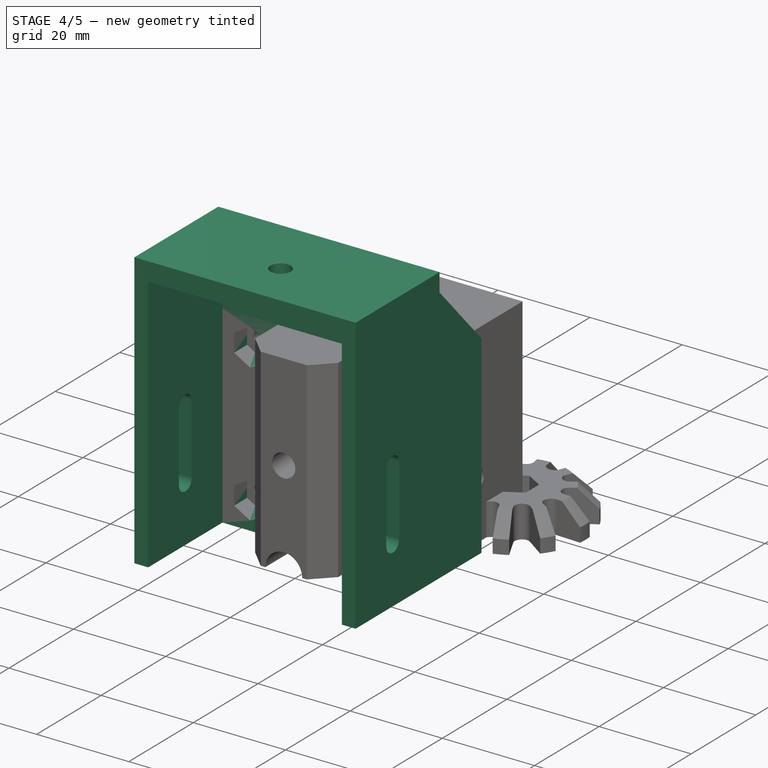
[diagram: stage 4 of 5 — iso view after this stage's code; geometry added in this stage tinted green]
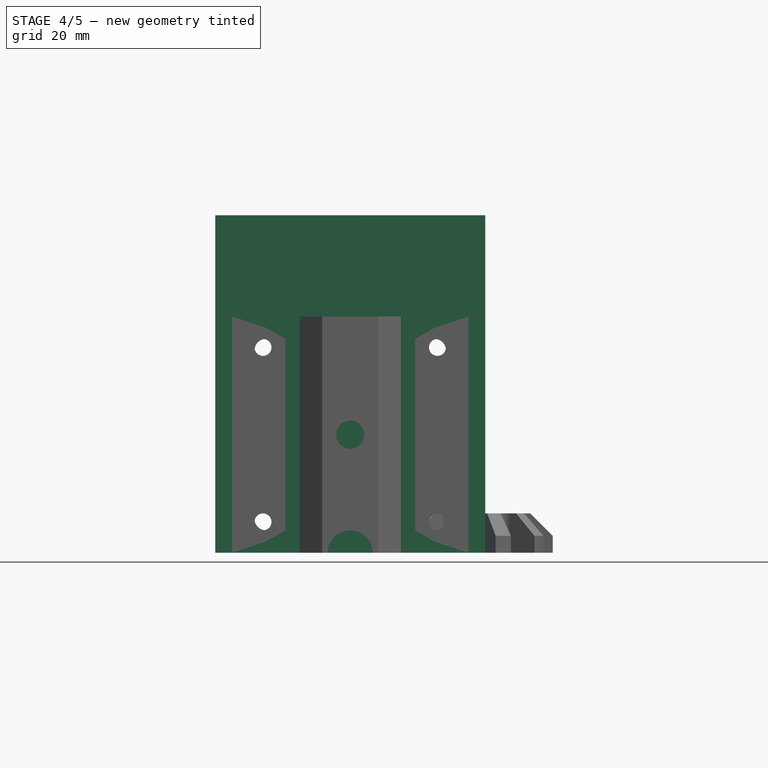
[diagram: stage 4 of 5 — front view after this stage's code; geometry added in this stage tinted green]
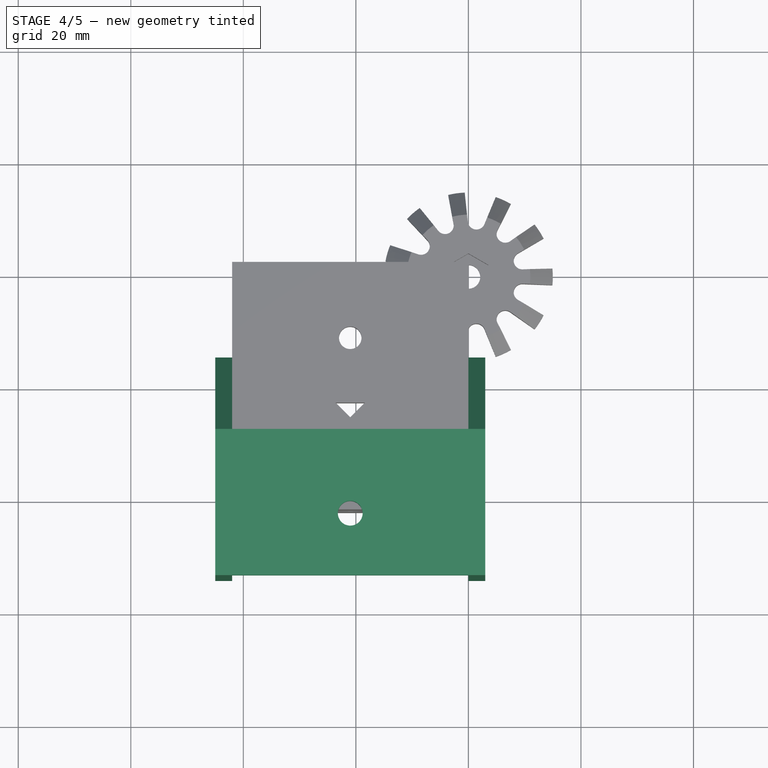
[diagram: stage 4 of 5 — top view after this stage's code; geometry added in this stage tinted green]
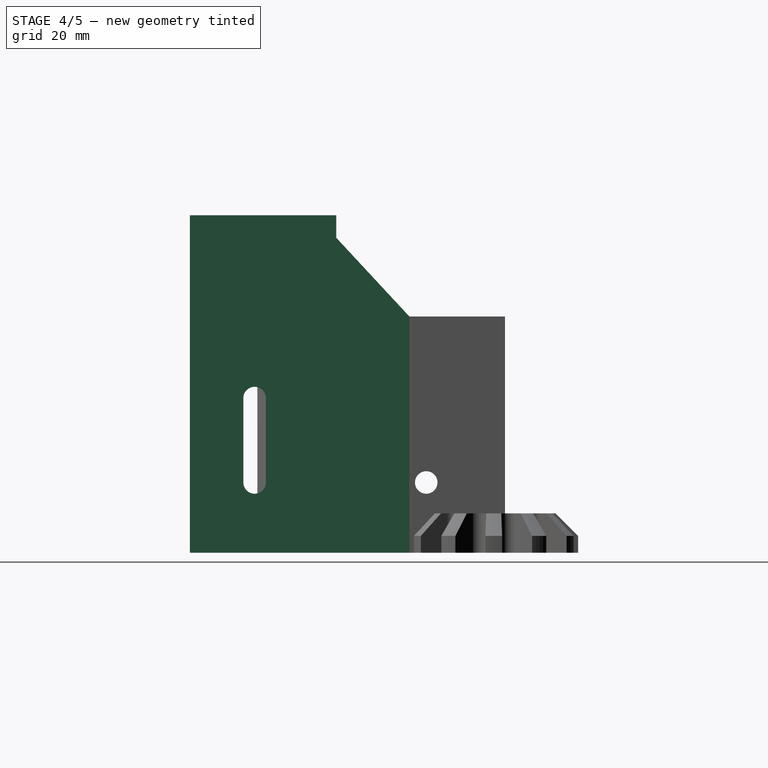
[diagram: stage 4 of 5 — right view after this stage's code; geometry added in this stage tinted green]
FEATURE [Sketcher::SketchObject] Sketch100
  MapMode = 5
  Support = -> [XY_Plane012]
  sketch-geometry (7):
    g0: LineSegment StartX=-10.3934 StartY=-15 StartZ=0 EndX=-21 EndY=-25.6066 EndZ=0
    g1: LineSegment StartX=-21 StartY=-25.6066 StartZ=0 EndX=-31.6066 EndY=-15 EndZ=0
    g2: LineSegment StartX=-31.6066 StartY=-15 StartZ=0 EndX=-42 EndY=-15 EndZ=0
    g3: LineSegment StartX=-42 StartY=-15 StartZ=0 EndX=-42 EndY=-31 EndZ=0
    g4: LineSegment StartX=-42 StartY=-31 StartZ=0 EndX=0 EndY=-31 EndZ=0
    g5: LineSegment StartX=0 StartY=-31 StartZ=0 EndX=0 EndY=-15 EndZ=0
    g6: LineSegment StartX=0 StartY=-15 StartZ=0 EndX=-10.3934 EndY=-15 EndZ=0
  constraints (21):
    c: Coincident(g0,g1)
    c: Coincident(g1,g2)
    c: Coincident(g2,g3)
    c: Coincident(g3,g4)
    c: Coincident(g4,g5)
    c: Coincident(g5,g6)
    c: Coincident(g0,g6)
    c: Horizontal(g6)
    c: Horizontal(g2)
    c: Horizontal(g4)
    c: Vertical(g3)
    c: Vertical(g5)
    c: Perpendicular(g1,g0)
    c: Equal(g0,g1)
    c: Equal(g2,g6)
    c: Equal(g5,g3)
    c: DistanceY(g5,g5) = 16
    c: Distance(g0) = 15
    c: DistanceX(g4,g4) = 42
    c: PointOnObject(g5,g-2)
    c: DistanceY(g5,g-1) = 15
FEATURE [PartDesign::Pad] Pad040
  Length = 42
  Length2 = 100
  Profile = -> Sketch100
  Type = 0
FEATURE [Sketcher::SketchObject] Sketch101
  MapMode = 5
  Placement = pos=(0,-31,0) rot=(1,0,0;1.5708rad)
  Support = -> [Pad040]
  sketch-geometry (8):
    g0: LineSegment [constr] StartX=-36 StartY=36 StartZ=0 EndX=-6 EndY=36 EndZ=0
    g1: LineSegment [constr] StartX=-6 StartY=36 StartZ=0 EndX=-6 EndY=6 EndZ=0
    g2: LineSegment [constr] StartX=-6 StartY=6 StartZ=0 EndX=-36 EndY=6 EndZ=0
    g3: LineSegment [constr] StartX=-36 StartY=6 StartZ=0 EndX=-36 EndY=36 EndZ=0
    g4: Circle CenterX=-36 CenterY=36 CenterZ=0 NormalX=0 NormalY=0 NormalZ=1 AngleXU=0 Radius=2
    g5: Circle CenterX=-6 CenterY=36 CenterZ=0 NormalX=0 NormalY=0 NormalZ=1 AngleXU=0 Radius=2
    g6: Circle CenterX=-36 CenterY=6 CenterZ=0 NormalX=0 NormalY=0 NormalZ=1 AngleXU=0 Radius=2
    g7: Circle CenterX=-6 CenterY=6 CenterZ=0 NormalX=0 NormalY=0 NormalZ=1 AngleXU=0 Radius=2
  constraints (20):
    c: Coincident(g0,g1)
    c: Coincident(g1,g2)
    c: Coincident(g2,g3)
    c: Coincident(g3,g0)
    c: Horizontal(g0)
    c: Horizontal(g2)
    c: Vertical(g1)
    c: Vertical(g3)
    c: Equal(g0,g3)
    c: DistanceX(g0,g0) = 30
    c: Coincident(g1,g7)
    c: Coincident(g2,g6)
    c: Coincident(g0,g4)
    c: Coincident(g0,g5)
    c: Radius(g6) = 2
    c: Equal(g6,g7)
    c: Equal(g6,g5)
    c: Equal(g6,g4)
    c: DistanceX(g7,g-1) = 6
    c: DistanceY(g-1,g7) = 6
FEATURE [PartDesign::Pocket] Pocket056
  BaseFeature = -> Pad040
  Length = 25
  Length2 = 100
  Profile = -> Sketch101
  Type = 0
FEATURE [Sketcher::SketchObject] Sketch102
  ExternalGeometry = -> [Pocket056]
  MapMode = 5
  Placement = pos=(0,-31,0) rot=(1,0,0;1.5708rad)
  Support = -> [Pocket056]
  sketch-geometry (28):
    g0: LineSegment StartX=-36 StartY=32 StartZ=0 EndX=-32.5359 EndY=34 EndZ=0
    g1: LineSegment StartX=-32.5359 StartY=34 StartZ=0 EndX=-32.5359 EndY=38 EndZ=0
    g2: LineSegment StartX=-32.5359 StartY=38 StartZ=0 EndX=-36 EndY=40 EndZ=0
    g3: LineSegment StartX=-36 StartY=40 StartZ=0 EndX=-39.4641 EndY=38 EndZ=0
    g4: LineSegment StartX=-39.4641 StartY=38 StartZ=0 EndX=-39.4641 EndY=34 EndZ=0
    g5: LineSegment StartX=-39.4641 StartY=34 StartZ=0 EndX=-36 EndY=32 EndZ=0
    g6: Circle [constr] CenterX=-36 CenterY=36 CenterZ=0 NormalX=0 NormalY=0 NormalZ=1 AngleXU=0 Radius=4
    g7: LineSegment StartX=-9.4641 StartY=34 StartZ=0 EndX=-6 EndY=32 EndZ=0
    g8: LineSegment StartX=-6 StartY=32 StartZ=0 EndX=-2.5359 EndY=34 EndZ=0
    g9: LineSegment StartX=-2.5359 StartY=34 StartZ=0 EndX=-2.5359 EndY=38 EndZ=0
    g10: LineSegment StartX=-2.5359 StartY=38 StartZ=0 EndX=-6 EndY=40 EndZ=0
    g11: LineSegment StartX=-6 StartY=40 StartZ=0 EndX=-9.4641 EndY=38 EndZ=0
    g12: LineSegment StartX=-9.4641 StartY=38 StartZ=0 EndX=-9.4641 EndY=34 EndZ=0
    g13: Circle [constr] CenterX=-6 CenterY=36 CenterZ=0 NormalX=0 NormalY=0 NormalZ=1 AngleXU=0 Radius=4
    g14: LineSegment StartX=-39.4641 StartY=4 StartZ=0 EndX=-36 EndY=2 EndZ=0
    g15: LineSegment StartX=-36 StartY=2 StartZ=0 EndX=-32.5359 EndY=4 EndZ=0
    g16: LineSegment StartX=-32.5359 StartY=4 StartZ=0 EndX=-32.5359 EndY=8 EndZ=0
    g17: LineSegment StartX=-32.5359 StartY=8 StartZ=0 EndX=-36 EndY=10 EndZ=0
    g18: LineSegment StartX=-36 StartY=10 StartZ=0 EndX=-39.4641 EndY=8 EndZ=0
    g19: LineSegment StartX=-39.4641 StartY=8 StartZ=0 EndX=-39.4641 EndY=4 EndZ=0
    g20: Circle [constr] CenterX=-36 CenterY=6 CenterZ=0 NormalX=0 NormalY=0 NormalZ=1 AngleXU=0 Radius=4
    g21: LineSegment StartX=-6 StartY=2 StartZ=0 EndX=-2.5359 EndY=4 EndZ=0
    g22: LineSegment StartX=-2.5359 StartY=4 StartZ=0 EndX=-2.5359 EndY=8 EndZ=0
    g23: LineSegment StartX=-2.5359 StartY=8 StartZ=0 EndX=-6 EndY=10 EndZ=0
    g24: LineSegment StartX=-6 StartY=10 StartZ=0 EndX=-9.4641 EndY=8 EndZ=0
    g25: LineSegment StartX=-9.4641 StartY=8 StartZ=0 EndX=-9.4641 EndY=4 EndZ=0
    g26: LineSegment StartX=-9.4641 StartY=4 StartZ=0 EndX=-6 EndY=2 EndZ=0
    g27: Circle [constr] CenterX=-6 CenterY=6 CenterZ=0 NormalX=0 NormalY=0 NormalZ=1 AngleXU=0 Radius=4
  constraints (64):
    c: Coincident(g0,g1)
    c: Coincident(g1,g2)
    c: Coincident(g2,g3)
    c: Coincident(g3,g4)
    c: Coincident(g4,g5)
    c: Coincident(g5,g0)
    c: Equal(g0, g1-g5) x5
    c: PointOnObject(g0,g6)
    c: PointOnObject(g1,g6)
    c: PointOnObject(g2,g6)
    c: PointOnObject(g3,g6)
    c: PointOnObject(g4,g6)
    c: PointOnObject(g5,g6)
    c: Coincident(g7,g8)
    c: Coincident(g8,g9)
    c: Coincident(g9,g10)
    c: Coincident(g10,g11)
    c: Coincident(g11,g12)
    c: Coincident(g12,g7)
    c: Equal(g7, g8-g12) x5
    c: PointOnObject(g7,g13)
    c: PointOnObject(g8,g13)
    c: PointOnObject(g9,g13)
    c: PointOnObject(g10,g13)
    c: PointOnObject(g11,g13)
    c: PointOnObject(g12,g13)
    c: Coincident(g14,g15)
    c: Coincident(g15,g16)
    c: Coincident(g16,g17)
    c: Coincident(g17,g18)
    c: Coincident(g18,g19)
    c: Coincident(g19,g14)
    c: Equal(g14, g15-g19) x5
    c: PointOnObject(g14,g20)
    c: PointOnObject(g15,g20)
    c: PointOnObject(g16,g20)
    c: PointOnObject(g17,g20)
    c: PointOnObject(g18,g20)
    c: PointOnObject(g19,g20)
    c: Coincident(g21,g22)
    c: Coincident(g22,g23)
    c: Coincident(g23,g24)
    c: Coincident(g24,g25)
    c: Coincident(g25,g26)
    c: Coincident(g26,g21)
    c: Equal(g21, g22-g26) x5
    c: PointOnObject(g21,g27)
    c: PointOnObject(g22,g27)
    c: PointOnObject(g23,g27)
    c: PointOnObject(g24,g27)
    c: PointOnObject(g25,g27)
    c: PointOnObject(g26,g27)
    c: Coincident(g27,g-6)
    c: Coincident(g20,g-5)
    c: Coincident(g6,g-3)
    c: Coincident(g13,g-4)
    c: Vertical(g4)
    c: Vertical(g12)
    c: Vertical(g19)
    c: Vertical(g25)
    c: Radius(g20) = 4
    c: Equal(g20,g6)
    c: Equal(g20,g13)
    c: Equal(g20,g27)
FEATURE [PartDesign::Pocket] Pocket057
  BaseFeature = -> Pocket056
  Length = 8
  Length2 = 100
  Profile = -> Sketch102
  Type = 0
FEATURE [Sketcher::SketchObject] Sketch103
  ExternalGeometry = -> [Pocket057]
  MapMode = 5
  Placement = pos=(0,0,42) rot=(0,0,1;0rad)
  Support = -> [Pocket057]
  sketch-geometry (4):
    g0: LineSegment StartX=-42 StartY=-31 StartZ=0 EndX=0 EndY=-31 EndZ=0
    g1: LineSegment StartX=0 StartY=-31 StartZ=0 EndX=0 EndY=-28 EndZ=0
    g2: LineSegment StartX=0 StartY=-28 StartZ=0 EndX=-42 EndY=-28 EndZ=0
    g3: LineSegment StartX=-42 StartY=-28 StartZ=0 EndX=-42 EndY=-31 EndZ=0
  constraints (10):
    c: Coincident(g0,g1)
    c: Coincident(g1,g2)
    c: Coincident(g2,g3)
    c: Coincident(g3,g0)
    c: Horizontal(g2)
    c: Vertical(g1)
    c: Vertical(g3)
    c: Coincident(g0,g-3)
    c: Coincident(g0,g-3)
    c: DistanceY(g3,g3) = 3
FEATURE [PartDesign::Pad] Pad041
  BaseFeature = -> Pocket057
  Length = 14
  Length2 = 100
  Profile = -> Sketch103
  Type = 0
FEATURE [Sketcher::SketchObject] Sketch104
  ExternalGeometry = -> [Pad041]
  MapMode = 5
  Placement = pos=(0,0,0) rot=(0.57735,0.57735,0.57735;2.0944rad)
  Support = -> [Pad041]
  sketch-geometry (9):
    g0: LineSegment StartX=-15 StartY=0 StartZ=0 EndX=-15 EndY=42 EndZ=0
    g1: LineSegment StartX=-15 StartY=42 StartZ=0 EndX=-28 EndY=56 EndZ=0
    g2: LineSegment StartX=-28 StartY=56 StartZ=0 EndX=-54 EndY=56 EndZ=0
    g3: LineSegment StartX=-54 StartY=56 StartZ=0 EndX=-54 EndY=0 EndZ=0
    g4: LineSegment StartX=-54 StartY=0 StartZ=0 EndX=-15 EndY=0 EndZ=0
    g5: ArcOfCircle CenterX=-42.5 CenterY=12.5 CenterZ=0 NormalX=0 NormalY=0 NormalZ=1 AngleXU=0 Radius=2 StartAngle=3.14159 EndAngle=6.28319
    g6: ArcOfCircle CenterX=-42.5 CenterY=27.5 CenterZ=0 NormalX=0 NormalY=0 NormalZ=1 AngleXU=0 Radius=2 StartAngle=-9e-16 EndAngle=3.14159
    g7: LineSegment StartX=-40.5 StartY=12.5 StartZ=0 EndX=-40.5 EndY=27.5 EndZ=0
    g8: LineSegment StartX=-44.5 StartY=12.5 StartZ=0 EndX=-44.5 EndY=27.5 EndZ=0
  constraints (22):
    c: Coincident(g0,g1)
    c: Coincident(g1,g2)
    c: Coincident(g2,g3)
    c: Coincident(g3,g4)
    c: Coincident(g0,g4)
    c: Coincident(g0,g-3)
    c: Horizontal(g4)
    c: Horizontal(g2)
    c: Vertical(g3)
    c: Coincident(g0,g-3)
    c: Coincident(g1,g-4)
    c: Tangent(g5,g8) = 1.5708
    c: Tangent(g5,g7) = -1.5708
    c: Tangent(g7,g6) = -1.5708
    c: Tangent(g8,g6) = 1.5708
    c: Vertical(g7)
    c: Equal(g5,g6)
    c: DistanceX(g5,g0) = 27.5
    c: Radius(g5) = 2
    c: DistanceY(g0,g5) = 12.5
    c: DistanceY(g5,g6) = 15
    c: DistanceX(g4,g4) = 39
FEATURE [PartDesign::Pad] Pad042
  BaseFeature = -> Pad041
  Length = 3
  Length2 = 100
  Profile = -> Sketch104
  Type = 0
FEATURE [Sketcher::SketchObject] Sketch105
  ExternalGeometry = -> [Pad042]
  MapMode = 5
  Placement = pos=(-42,0,0) rot=(0.57735,-0.57735,-0.57735;2.0944rad)
  Support = -> [Pad042]
  sketch-geometry (9):
    g0: LineSegment StartX=15 StartY=0 StartZ=0 EndX=15 EndY=42 EndZ=0
    g1: LineSegment StartX=15 StartY=42 StartZ=0 EndX=28 EndY=56 EndZ=0
    g2: LineSegment StartX=28 StartY=56 StartZ=0 EndX=54 EndY=56 EndZ=0
    g3: LineSegment StartX=54 StartY=56 StartZ=0 EndX=54 EndY=0 EndZ=0
    g4: LineSegment StartX=54 StartY=0 StartZ=0 EndX=15 EndY=0 EndZ=0
    g5: ArcOfCircle CenterX=42.5 CenterY=12.5 CenterZ=0 NormalX=0 NormalY=0 NormalZ=1 AngleXU=0 Radius=2 StartAngle=3.14159 EndAngle=6.28319
    g6: ArcOfCircle CenterX=42.5 CenterY=27.5 CenterZ=0 NormalX=0 NormalY=0 NormalZ=1 AngleXU=0 Radius=2 StartAngle=5e-16 EndAngle=3.14159
    g7: LineSegment StartX=44.5 StartY=12.5 StartZ=0 EndX=44.5 EndY=27.5 EndZ=0
    g8: LineSegment StartX=40.5 StartY=12.5 StartZ=0 EndX=40.5 EndY=27.5 EndZ=0
  constraints (22):
    c: Coincident(g0,g1)
    c: Coincident(g1,g2)
    c: Coincident(g2,g3)
    c: Coincident(g3,g4)
    c: Coincident(g0,g4)
    c: Coincident(g0,g-3)
    c: Horizontal(g4)
    c: Horizontal(g2)
    c: Vertical(g3)
    c: Coincident(g0,g-3)
    c: Coincident(g1,g-4)
    c: DistanceX(g4,g4) = 39
    c: Tangent(g5,g8) = 1.5708
    c: Tangent(g5,g7) = -1.5708
    c: Tangent(g7,g6) = -1.5708
    c: Tangent(g8,g6) = 1.5708
    c: Vertical(g7)
    c: Equal(g5,g6)
    c: DistanceX(g0,g5) = 27.5
    c: DistanceY(g0,g5) = 12.5
    c: DistanceY(g5,g6) = 15
    c: Radius(g5) = 2
FEATURE [PartDesign::Pad] Pad043
  BaseFeature = -> Pad042
  Length = 3
  Length2 = 100
  Profile = -> Sketch105
  Type = 0
FEATURE [Sketcher::SketchObject] Sketch133
  ExternalGeometry = -> [Pad043]
  MapMode = 5
  Placement = pos=(0,0,56) rot=(0,0,1;0rad)
  Support = -> [Pad043]
  sketch-geometry (5):
    g0: LineSegment StartX=-45 StartY=-54 StartZ=0 EndX=3 EndY=-54 EndZ=0
    g1: LineSegment StartX=3 StartY=-54 StartZ=0 EndX=3 EndY=-28 EndZ=0
    g2: LineSegment StartX=3 StartY=-28 StartZ=0 EndX=-45 EndY=-28 EndZ=0
    g3: LineSegment StartX=-45 StartY=-28 StartZ=0 EndX=-45 EndY=-54 EndZ=0
    g4: Circle CenterX=-21 CenterY=-43 CenterZ=0 NormalX=0 NormalY=0 NormalZ=1 AngleXU=0 Radius=2.2
  constraints (13):
    c: Coincident(g0,g1)
    c: Coincident(g1,g2)
    c: Coincident(g2,g3)
    c: Coincident(g3,g0)
    c: Horizontal(g0)
    c: Horizontal(g2)
    c: Vertical(g1)
    c: Vertical(g3)
    c: Coincident(g1,g-3)
    c: Coincident(g0,g-4)
    c: Radius(g4) = 2.2
    c: DistanceX(g4,g0) = 24
    c: DistanceY(g0,g4) = 11
FEATURE [PartDesign::Pad] Pad050
  BaseFeature = -> Pad043
  Length = 4
  Length2 = 100
  Profile = -> Sketch133
  Type = 0
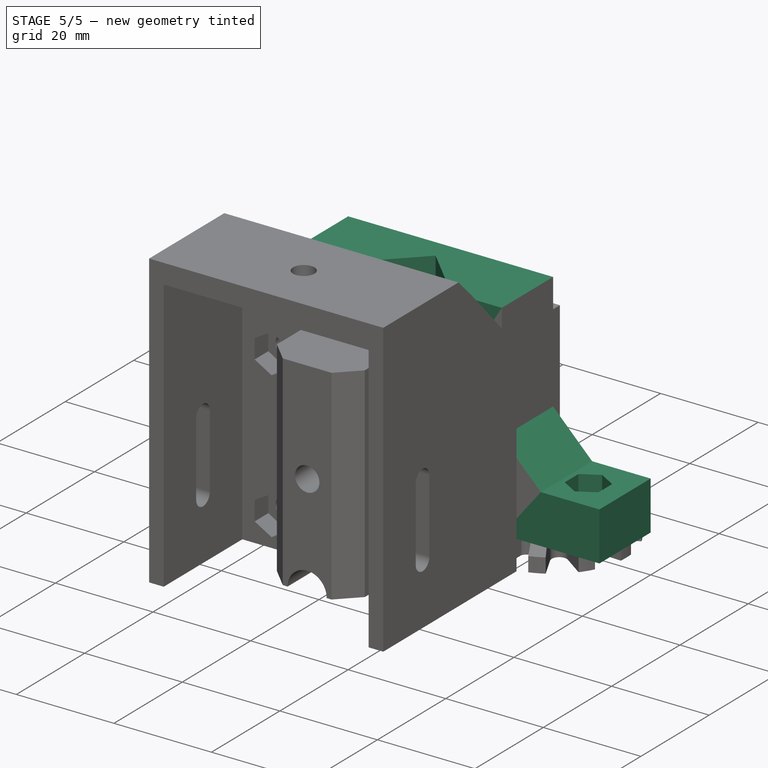
[diagram: stage 5 of 5 — iso view after this stage's code; geometry added in this stage tinted green]
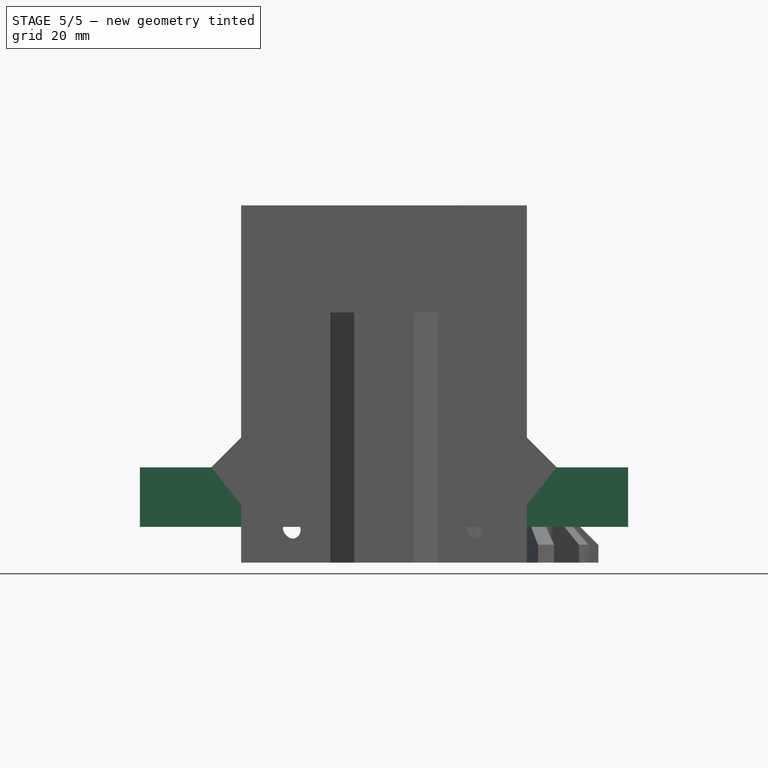
[diagram: stage 5 of 5 — front view after this stage's code; geometry added in this stage tinted green]
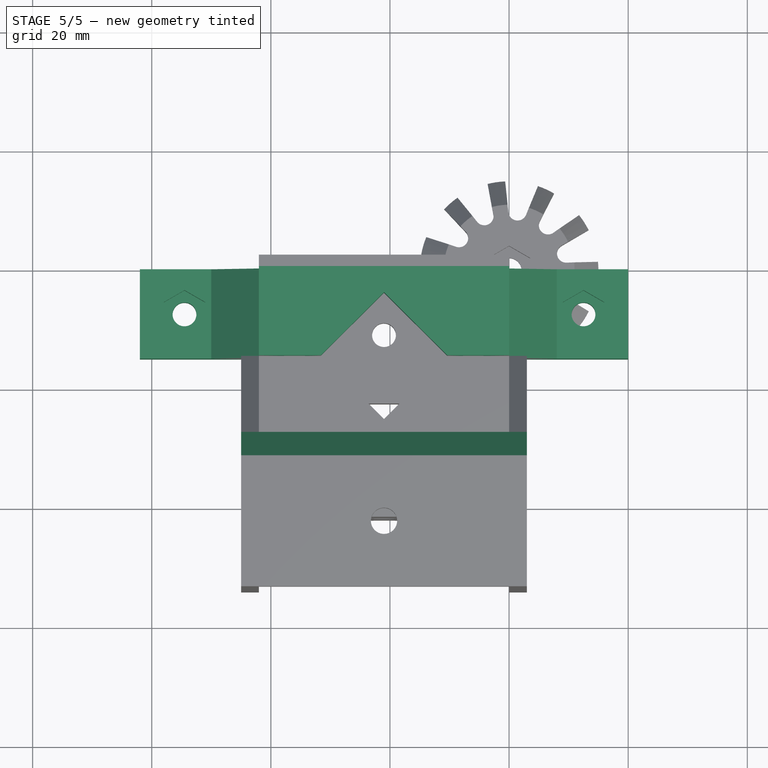
[diagram: stage 5 of 5 — top view after this stage's code; geometry added in this stage tinted green]
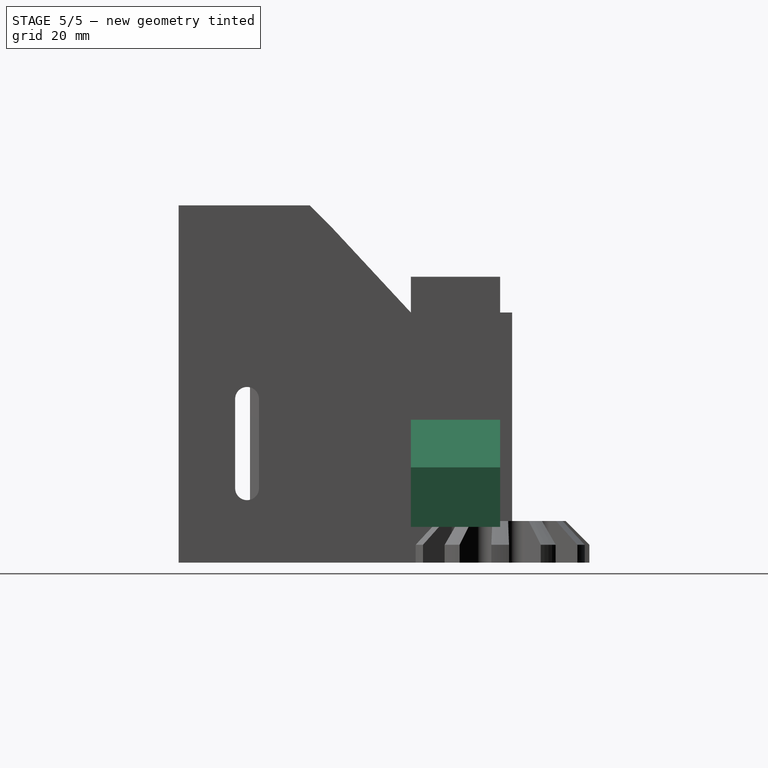
[diagram: stage 5 of 5 — right view after this stage's code; geometry added in this stage tinted green]
FEATURE [Sketcher::SketchObject] Sketch013
  MapMode = 5
  Placement = pos=(0,0,6) rot=(0,0,1;0rad)
  sketch-geometry (7):
    g0: LineSegment StartX=-42 StartY=0 StartZ=0 EndX=0 EndY=0 EndZ=0
    g1: LineSegment StartX=0 StartY=0 StartZ=0 EndX=0 EndY=-15 EndZ=0
    g2: LineSegment StartX=0 StartY=-15 StartZ=0 EndX=-10.3934 EndY=-15 EndZ=0
    g3: LineSegment StartX=-10.3934 StartY=-15 StartZ=0 EndX=-21 EndY=-4.3934 EndZ=0
    g4: LineSegment StartX=-21 StartY=-4.3934 StartZ=0 EndX=-31.6066 EndY=-15 EndZ=0
    g5: LineSegment StartX=-31.6066 StartY=-15 StartZ=0 EndX=-42 EndY=-15 EndZ=0
    g6: LineSegment StartX=-42 StartY=-15 StartZ=0 EndX=-42 EndY=0 EndZ=0
  constraints (20):
    c: Coincident(g5,g6)
    c: Coincident(g0,g6)
    c: Coincident(g2,g3)
    c: Coincident(g1,g2)
    c: Coincident(g0,g1)
    c: Coincident(g4,g5)
    c: Coincident(g3,g4)
    c: Coincident(g0,g-1)
    c: Horizontal(g0)
    c: DistanceX(g0,g0) = 42
    c: DistanceY(g1,g1) = 15
    c: Distance(g3) = 15
    c: Horizontal(g2)
    c: Horizontal(g5)
    c: Vertical(g6)
    c: Vertical(g1)
    c: Perpendicular(g4,g3)
    c: Equal(g5,g2)
    c: Equal(g6,g1)
    c: Equal(g3,g4)
FEATURE [PartDesign::Pad] Pad004
  Length = 42
  Length2 = 100
  Placement = pos=(0,0,6) rot=(0,0,1;0rad)
  Profile = -> Sketch013
  Type = 0
FEATURE [Sketcher::SketchObject] Sketch031
  ExternalGeometry = -> [Pad004]
  MapMode = 5
  Placement = pos=(0,0,6) rot=(1,0,0;3.14159rad)
  Support = -> [Pad004]
  sketch-geometry (8):
    g0: LineSegment StartX=0 StartY=0 StartZ=0 EndX=20 EndY=0 EndZ=0
    g1: LineSegment StartX=20 StartY=0 StartZ=0 EndX=20 EndY=15 EndZ=0
    g2: LineSegment StartX=20 StartY=15 StartZ=0 EndX=0 EndY=15 EndZ=0
    g3: LineSegment StartX=0 StartY=15 StartZ=0 EndX=0 EndY=0 EndZ=0
    g4: LineSegment StartX=-42 StartY=0 StartZ=0 EndX=-62 EndY=0 EndZ=0
    g5: LineSegment StartX=-62 StartY=0 StartZ=0 EndX=-62 EndY=15 EndZ=0
    g6: LineSegment StartX=-62 StartY=15 StartZ=0 EndX=-42 EndY=15 EndZ=0
    g7: LineSegment StartX=-42 StartY=15 StartZ=0 EndX=-42 EndY=0 EndZ=0
  constraints (20):
    c: Coincident(g0,g1)
    c: Coincident(g1,g2)
    c: Coincident(g2,g3)
    c: Coincident(g3,g0)
    c: Horizontal(g0)
    c: Horizontal(g2)
    c: Vertical(g1)
    c: Coincident(g4,g5)
    c: Coincident(g5,g6)
    c: Coincident(g6,g7)
    c: Coincident(g7,g4)
    c: Horizontal(g4)
    c: Horizontal(g6)
    c: Vertical(g5)
    c: Coincident(g4,g-3)
    c: Coincident(g0,g-1)
    c: Coincident(g6,g-3)
    c: Coincident(g2,g-4)
    c: Equal(g2,g6)
    c: DistanceX(g2,g2) = 20
FEATURE [PartDesign::Pad] Pad014
  BaseFeature = -> Pad004
  Length = 10
  Length2 = 100
  Placement = pos=(0,0,6) rot=(0,0,1;0rad)
  Profile = -> Sketch031
  Reversed = true
  Type = 0
FEATURE [Sketcher::SketchObject] Sketch032
  ExternalGeometry = -> [Pad014]
  MapMode = 5
  Placement = pos=(0,0,16) rot=(0,0,1;0rad)
  Support = -> [Pad014]
  sketch-geometry (2):
    g0: Circle CenterX=12.5 CenterY=-7.5 CenterZ=0 NormalX=0 NormalY=0 NormalZ=1 AngleXU=0 Radius=2
    g1: Circle CenterX=-54.5 CenterY=-7.5 CenterZ=0 NormalX=0 NormalY=0 NormalZ=1 AngleXU=0 Radius=2
  constraints (6):
    c: Radius(g1) = 2
    c: Equal(g1,g0)
    c: DistanceX(g-4,g1) = 7.5
    c: DistanceY(g-4,g1) = 7.5
    c: DistanceX(g0,g-3) = 7.5
    c: DistanceY(g0,g-3) = 7.5
FEATURE [PartDesign::Pocket] Pocket016
  BaseFeature = -> Pad014
  Length = 11
  Length2 = 100
  Placement = pos=(0,0,6) rot=(0,0,1;0rad)
  Profile = -> Sketch032
  Type = 0
FEATURE [Sketcher::SketchObject] Sketch033
  ExternalGeometry = -> [Pocket016]
  MapMode = 5
  Placement = pos=(0,0,16) rot=(0,0,1;0rad)
  Support = -> [Pocket016]
  sketch-geometry (14):
    g0: LineSegment StartX=-54.5 StartY=-11.5 StartZ=0 EndX=-51.0359 EndY=-9.5 EndZ=0
    g1: LineSegment StartX=-51.0359 StartY=-9.5 StartZ=0 EndX=-51.0359 EndY=-5.5 EndZ=0
    g2: LineSegment StartX=-51.0359 StartY=-5.5 StartZ=0 EndX=-54.5 EndY=-3.5 EndZ=0
    g3: LineSegment StartX=-54.5 StartY=-3.5 StartZ=0 EndX=-57.9641 EndY=-5.5 EndZ=0
    g4: LineSegment StartX=-57.9641 StartY=-5.5 StartZ=0 EndX=-57.9641 EndY=-9.5 EndZ=0
    g5: LineSegment StartX=-57.9641 StartY=-9.5 StartZ=0 EndX=-54.5 EndY=-11.5 EndZ=0
    g6: Circle [constr] CenterX=-54.5 CenterY=-7.5 CenterZ=0 NormalX=0 NormalY=0 NormalZ=1 AngleXU=0 Radius=4
    g7: LineSegment StartX=12.5 StartY=-11.5 StartZ=0 EndX=15.9641 EndY=-9.5 EndZ=0
    g8: LineSegment StartX=15.9641 StartY=-9.5 StartZ=0 EndX=15.9641 EndY=-5.5 EndZ=0
    g9: LineSegment StartX=15.9641 StartY=-5.5 StartZ=0 EndX=12.5 EndY=-3.5 EndZ=0
    g10: LineSegment StartX=12.5 StartY=-3.5 StartZ=0 EndX=9.0359 EndY=-5.5 EndZ=0
    g11: LineSegment StartX=9.0359 StartY=-5.5 StartZ=0 EndX=9.0359 EndY=-9.5 EndZ=0
    g12: LineSegment StartX=9.0359 StartY=-9.5 StartZ=0 EndX=12.5 EndY=-11.5 EndZ=0
    g13: Circle [constr] CenterX=12.5 CenterY=-7.5 CenterZ=0 NormalX=0 NormalY=0 NormalZ=1 AngleXU=0 Radius=4
  constraints (32):
    c: Coincident(g0,g1)
    c: Coincident(g1,g2)
    c: Coincident(g2,g3)
    c: Coincident(g3,g4)
    c: Coincident(g4,g5)
    c: Coincident(g5,g0)
    c: Equal(g0, g1-g5) x5
    c: PointOnObject(g0,g6)
    c: PointOnObject(g1,g6)
    c: PointOnObject(g2,g6)
    c: PointOnObject(g3,g6)
    c: PointOnObject(g4,g6)
    c: PointOnObject(g5,g6)
    c: Coincident(g7,g8)
    c: Coincident(g8,g9)
    c: Coincident(g9,g10)
    c: Coincident(g10,g11)
    c: Coincident(g11,g12)
    c: Coincident(g12,g7)
    c: Equal(g7, g8-g12) x5
    c: PointOnObject(g7,g13)
    c: PointOnObject(g8,g13)
    c: PointOnObject(g9,g13)
    c: PointOnObject(g10,g13)
    c: PointOnObject(g11,g13)
    c: PointOnObject(g12,g13)
    c: Vertical(g11)
    c: Vertical(g4)
    c: Coincident(g6,g-4)
    c: Coincident(g13,g-3)
    c: Radius(g6) = 4
    c: Equal(g6,g13)
FEATURE [PartDesign::Pocket] Pocket017
  BaseFeature = -> Pocket016
  Length = 4
  Length2 = 100
  Placement = pos=(0,0,6) rot=(0,0,1;0rad)
  Profile = -> Sketch033
  Type = 0
FEATURE [PartDesign::Chamfer] Chamfer001
  Base = -> Pocket017 [Edge10,Edge16]
  BaseFeature = -> Pocket017
  Placement = pos=(0,0,6) rot=(0,0,1;0rad)
  Size = 8
FEATURE [Sketcher::SketchObject] Sketch034
  ExternalGeometry = -> [Chamfer001]
  MapMode = 5
  Placement = pos=(0,0,6) rot=(0,0.707107,0.707107;3.14159rad)
  Support = -> [Chamfer001]
  sketch-geometry (8):
    g0: LineSegment [constr] StartX=6 StartY=36 StartZ=0 EndX=36 EndY=36 EndZ=0
    g1: LineSegment [constr] StartX=36 StartY=36 StartZ=0 EndX=36 EndY=6 EndZ=0
    g2: LineSegment [constr] StartX=36 StartY=6 StartZ=0 EndX=6 EndY=6 EndZ=0
    g3: LineSegment [constr] StartX=6 StartY=6 StartZ=0 EndX=6 EndY=36 EndZ=0
    g4: Circle CenterX=6 CenterY=6 CenterZ=0 NormalX=0 NormalY=0 NormalZ=1 AngleXU=0 Radius=2
    g5: Circle CenterX=36 CenterY=6 CenterZ=0 NormalX=0 NormalY=0 NormalZ=1 AngleXU=0 Radius=2
    g6: Circle CenterX=6 CenterY=36 CenterZ=0 NormalX=0 NormalY=0 NormalZ=1 AngleXU=0 Radius=2
    g7: Circle CenterX=36 CenterY=36 CenterZ=0 NormalX=0 NormalY=0 NormalZ=1 AngleXU=0 Radius=2
  constraints (20):
    c: Coincident(g0,g1)
    c: Coincident(g1,g2)
    c: Coincident(g2,g3)
    c: Coincident(g3,g0)
    c: Horizontal(g0)
    c: Horizontal(g2)
    c: Vertical(g1)
    c: Vertical(g3)
    c: Coincident(g0,g7)
    c: Coincident(g0,g6)
    c: Coincident(g2,g4)
    c: Coincident(g1,g5)
    c: Radius(g4) = 2
    c: Equal(g4,g6)
    c: Equal(g4,g7)
    c: Equal(g4,g5)
    c: Equal(g3,g2)
    c: DistanceY(g-1,g4) = 6
    c: DistanceY(g6,g-3) = 6
    c: DistanceX(g-3,g6) = 6
FEATURE [PartDesign::Pocket] Pocket018
  BaseFeature = -> Chamfer001
  Length = 15
  Length2 = 100
  Placement = pos=(0,0,6) rot=(0,0,1;0rad)
  Profile = -> Sketch034
  Type = 0
FEATURE [PartDesign::Chamfer] Chamfer007
  Base = -> Pad050 [Edge159]
  BaseFeature = -> Pad050
  Size = 3.99
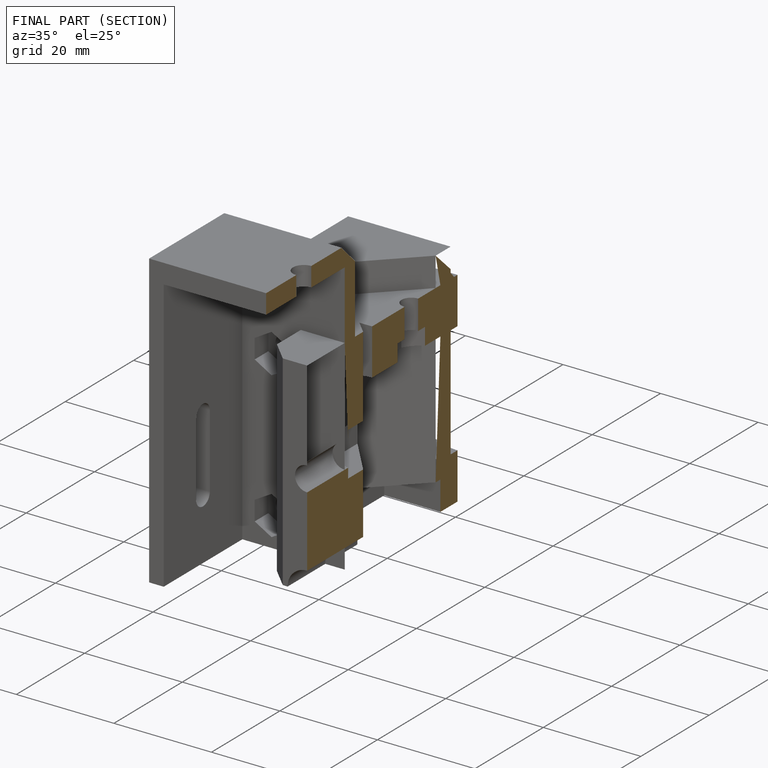
[diagram: finished part — half-section view (interior)]
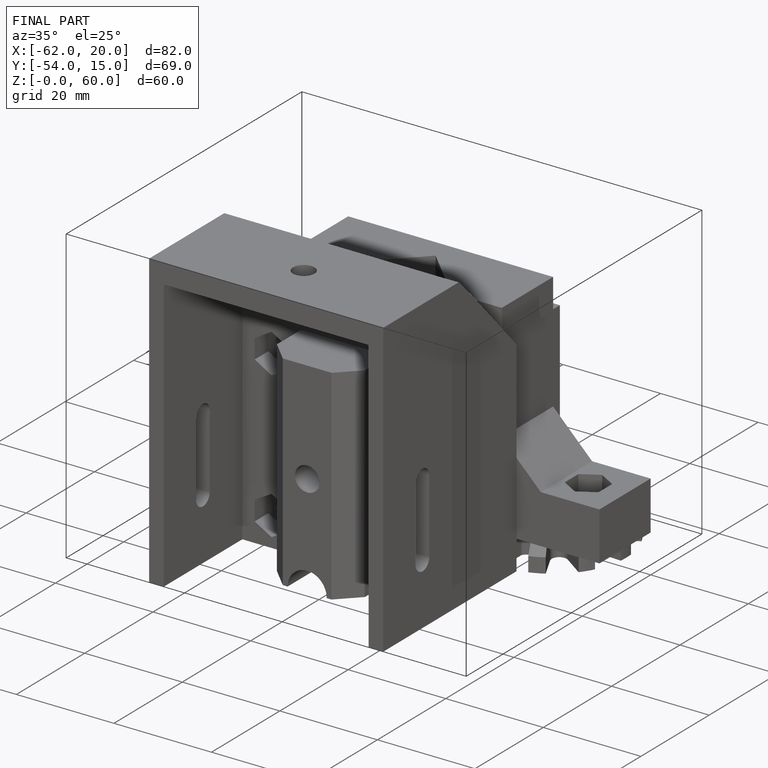
[diagram: finished part — iso view with bounding-box wireframe]
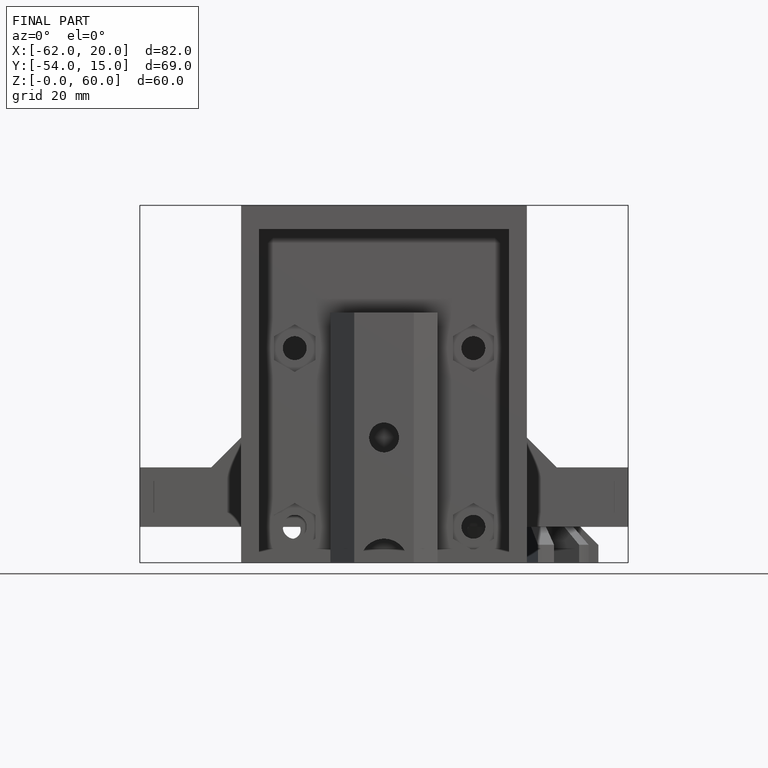
[diagram: finished part — front view with bounding-box wireframe]
